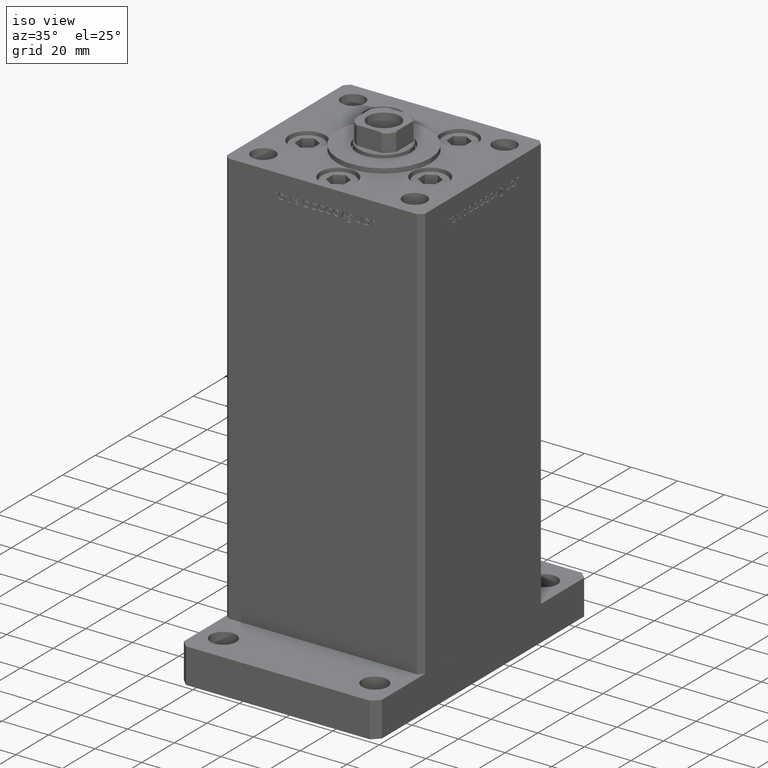
[diagram: clean part render]
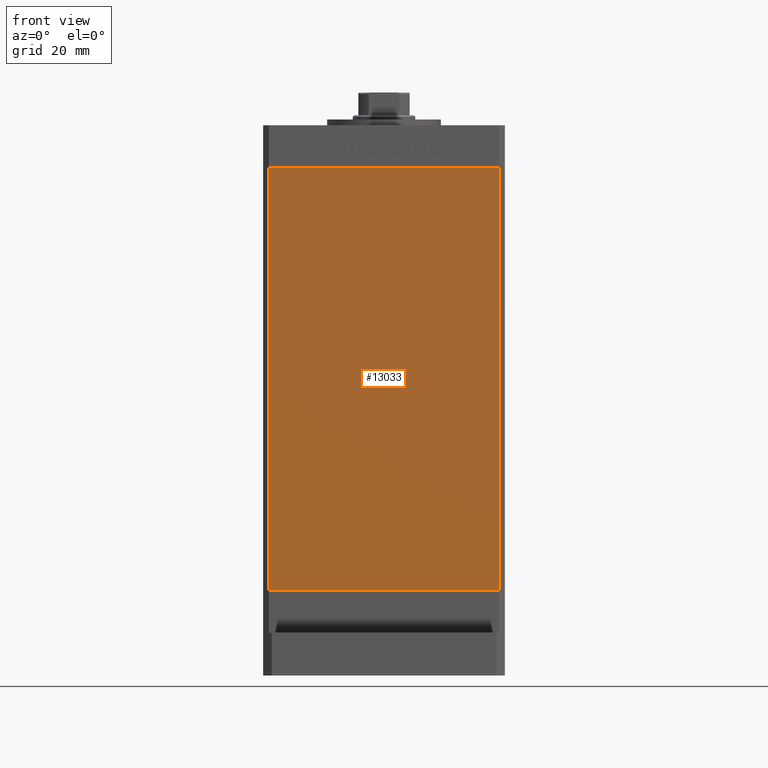
[diagram: tour spotlight — one face highlighted and labeled with its STEP entity id]
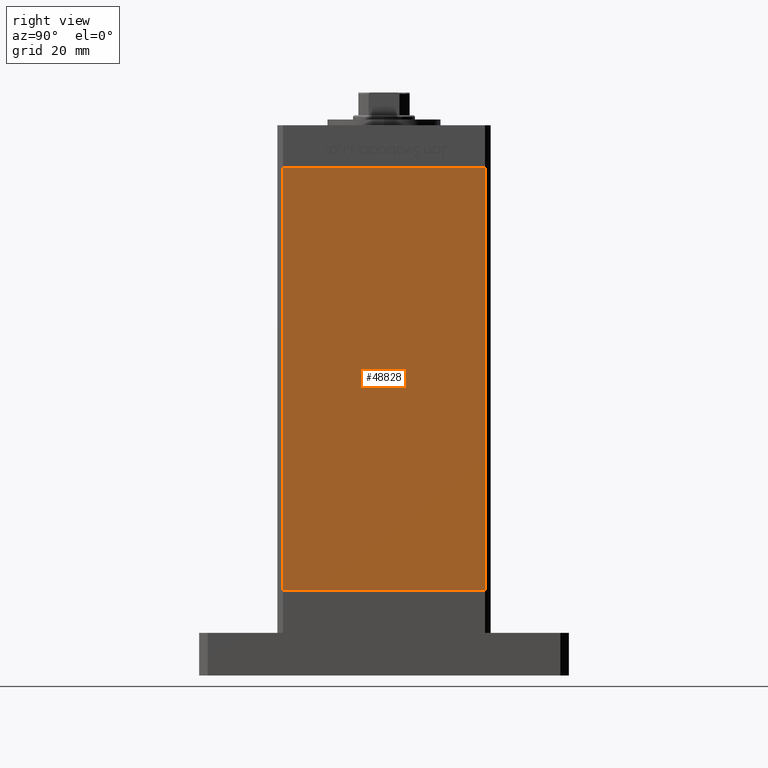
[diagram: tour spotlight — one face highlighted and labeled with its STEP entity id]
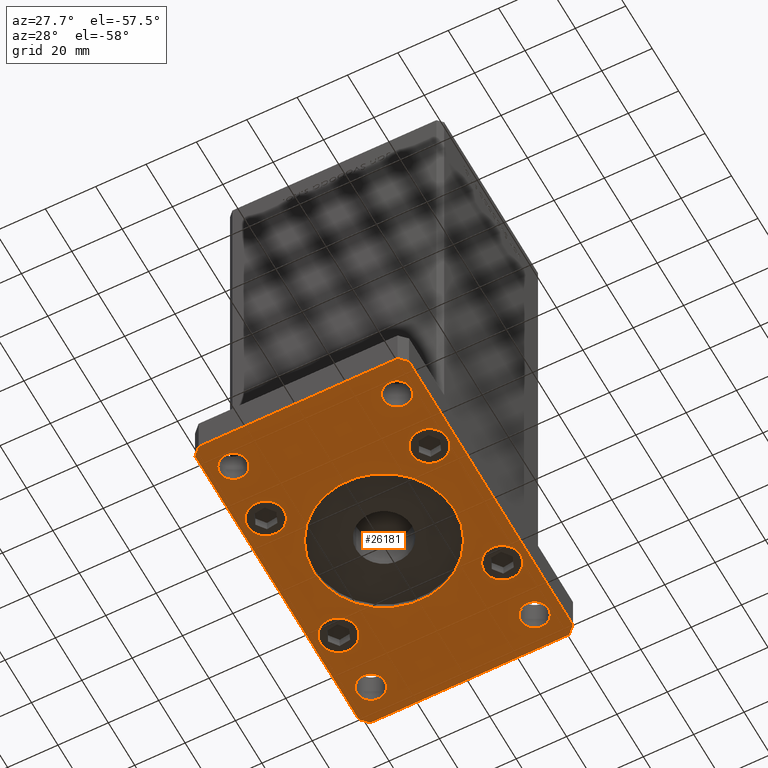
[diagram: tour spotlight — one face highlighted and labeled with its STEP entity id]
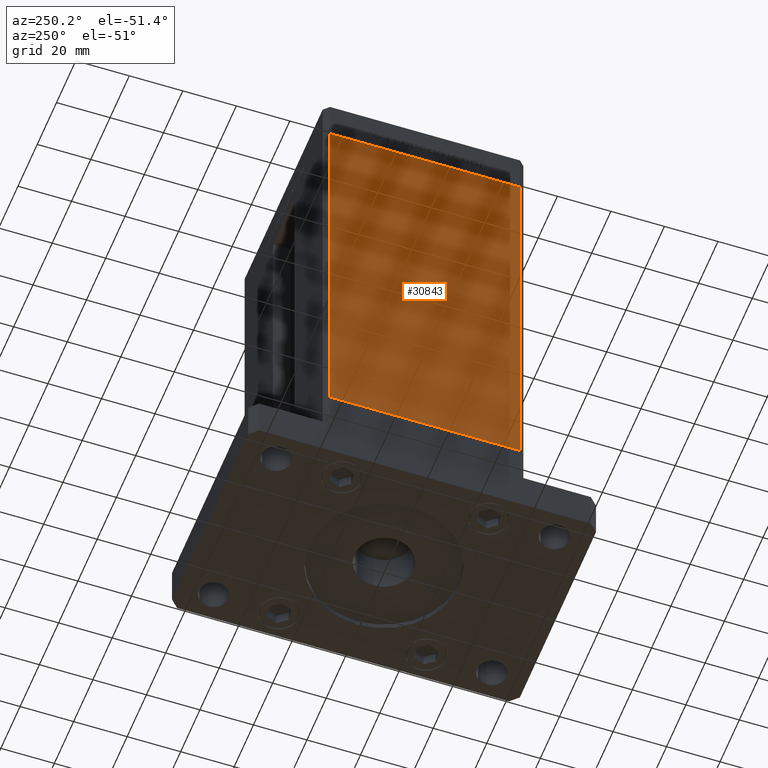
[diagram: tour spotlight — one face highlighted and labeled with its STEP entity id]
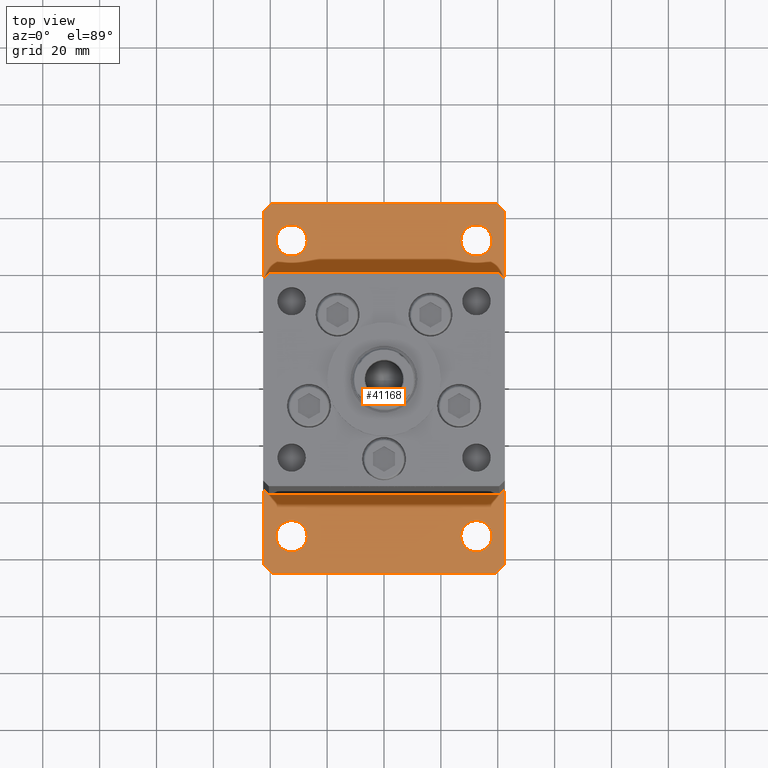
[diagram: tour spotlight — one face highlighted and labeled with its STEP entity id]
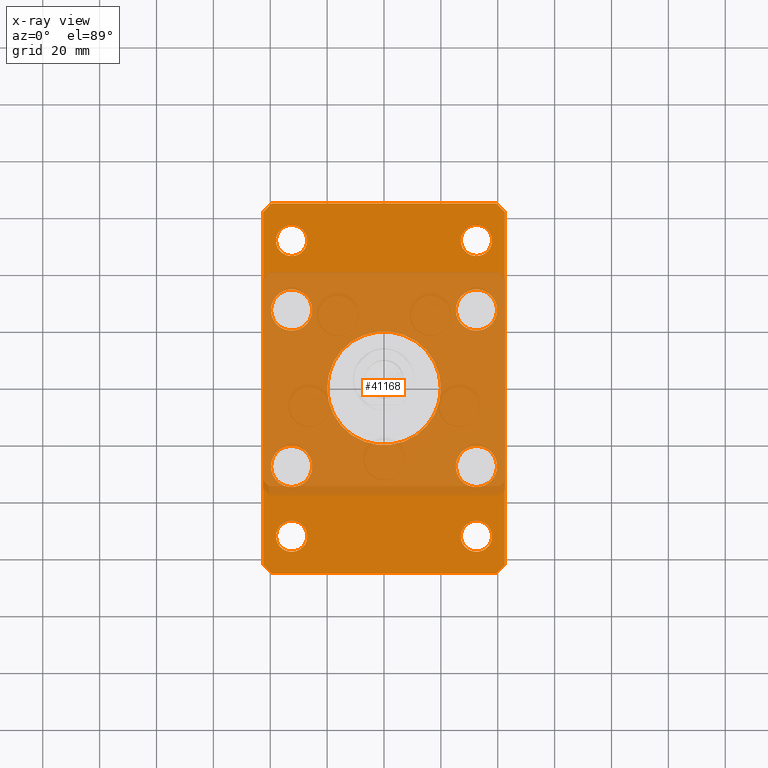
[diagram: x-ray of the same camera — body ghosted, this tour face saturated]
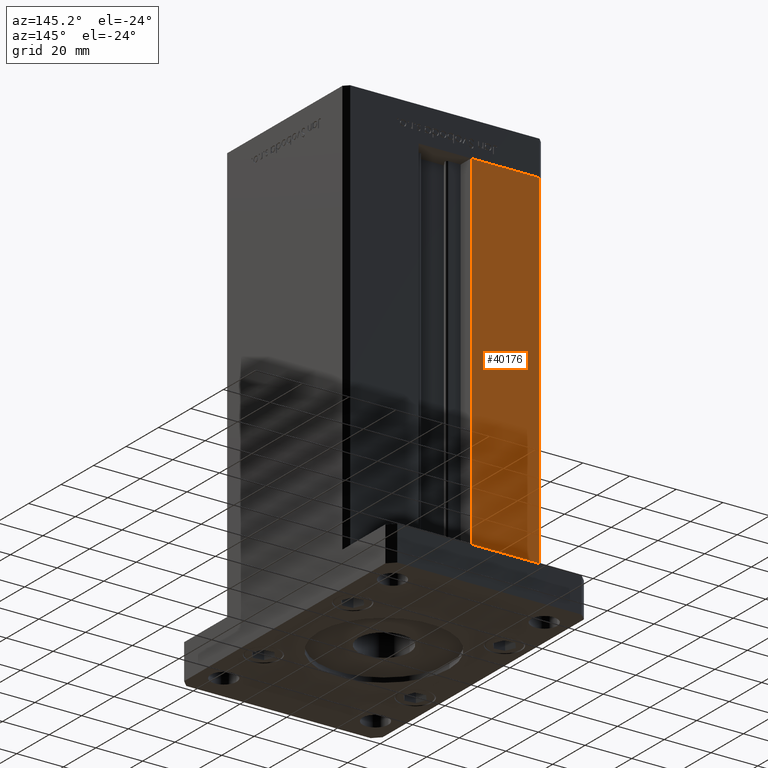
[diagram: tour spotlight — one face highlighted and labeled with its STEP entity id]
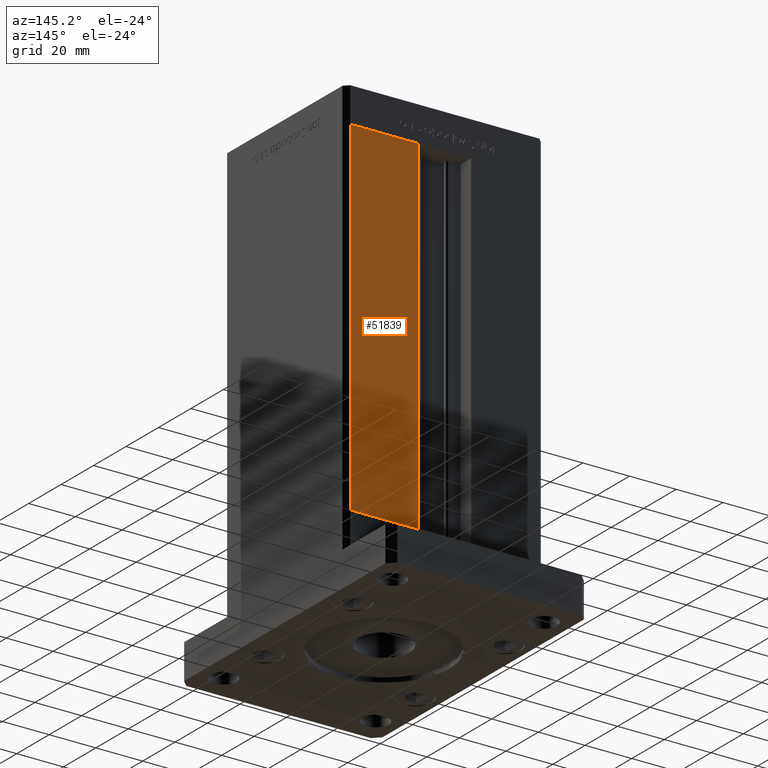
[diagram: tour spotlight — one face highlighted and labeled with its STEP entity id]
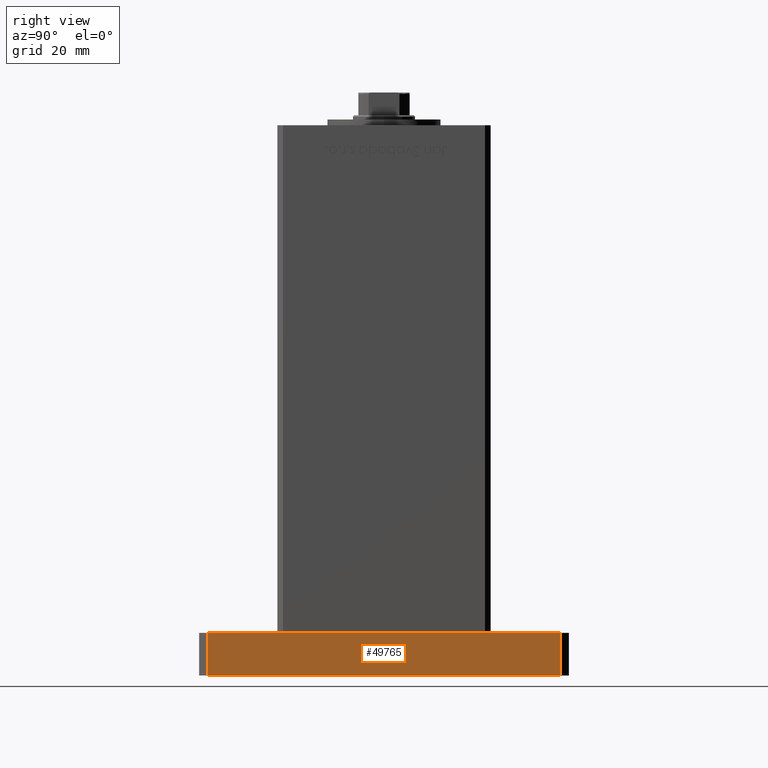
[diagram: tour spotlight — one face highlighted and labeled with its STEP entity id]
A machine part: a face-by-face anatomy tour. The part has 1301 B-rep faces; the first image is the clean iso view, then the 8 largest visible faces are spotlighted one at a time (largest first), each with its STEP entity span.

Face 1 — front view, entity #13033. In plain terms, the highlighted planar face has unit normal (0, 1, 0).
Definition (entity closure, byte-faithful):
#415 = EDGE_CURVE ( 'NONE', #33476, #8561, #40274, .T. ) ;
#1241 = DIRECTION ( 'NONE',  ( 1.000000000000000000, 0.000000000000000000, 0.000000000000000000 ) ) ;
#3332 = DIRECTION ( 'NONE',  ( -0.000000000000000000, -0.000000000000000000, -1.000000000000000000 ) ) ;
#3523 = EDGE_LOOP ( 'NONE', ( #31674, #44580, #5696, #45705 ) ) ;
#5541 = CARTESIAN_POINT ( 'NONE',  ( -40.49999999999998579, -37.50000000000000711, 148.5000000000000000 ) ) ;
#5696 = ORIENTED_EDGE ( 'NONE', *, *, #38965, .F. ) ;
#6839 = FACE_OUTER_BOUND ( 'NONE', #3523, .T. ) ;
#7124 = VECTOR ( 'NONE', #3332, 1000.000000000000000 ) ;
#7469 = CARTESIAN_POINT ( 'NONE',  ( -40.49999999999998579, -37.50000000000000711, 148.5000000000000000 ) ) ;
#8561 = VERTEX_POINT ( 'NONE', #43860 ) ;
#11402 = CARTESIAN_POINT ( 'NONE',  ( 40.49999999999998579, -37.50000000000000711, 148.5000000000000000 ) ) ;
#11962 = CARTESIAN_POINT ( 'NONE',  ( -40.49999999999998579, -37.50000000000000711, 148.5000000000000000 ) ) ;
#13033 = ADVANCED_FACE ( 'NONE', ( #6839 ), #32698, .F. ) ;
#13487 = CARTESIAN_POINT ( 'NONE',  ( 40.49999999999998579, -37.50000000000000711, 0.000000000000000000 ) ) ;
#16013 = DIRECTION ( 'NONE',  ( -0.000000000000000000, -0.000000000000000000, -1.000000000000000000 ) ) ;
#16016 = AXIS2_PLACEMENT_3D ( 'NONE', #11962, #23322, #48084 ) ;
#16938 = EDGE_CURVE ( 'NONE', #8561, #26403, #45204, .T. ) ;
#23322 = DIRECTION ( 'NONE',  ( 0.000000000000000000, 1.000000000000000000, 0.000000000000000000 ) ) ;
#23335 = CARTESIAN_POINT ( 'NONE',  ( -40.49999999999998579, -37.50000000000000711, 148.5000000000000000 ) ) ;
#26403 = VERTEX_POINT ( 'NONE', #13487 ) ;
#30377 = CARTESIAN_POINT ( 'NONE',  ( 40.49999999999998579, -37.50000000000000711, 148.5000000000000000 ) ) ;
#31674 = ORIENTED_EDGE ( 'NONE', *, *, #16938, .T. ) ;
#31741 = CARTESIAN_POINT ( 'NONE',  ( -40.49999999999998579, -37.50000000000000711, 0.000000000000000000 ) ) ;
#32422 = VECTOR ( 'NONE', #16013, 1000.000000000000000 ) ;
#32698 = PLANE ( 'NONE',  #16016 ) ;
#33476 = VERTEX_POINT ( 'NONE', #5541 ) ;
#34178 = VECTOR ( 'NONE', #1241, 1000.000000000000000 ) ;
#34695 = VECTOR ( 'NONE', #37840, 1000.000000000000000 ) ;
#37840 = DIRECTION ( 'NONE',  ( 1.000000000000000000, 0.000000000000000000, 0.000000000000000000 ) ) ;
#38965 = EDGE_CURVE ( 'NONE', #33476, #46979, #41890, .T. ) ;
#40274 = LINE ( 'NONE', #23335, #7124 ) ;
#41890 = LINE ( 'NONE', #7469, #34695 ) ;
#43860 = CARTESIAN_POINT ( 'NONE',  ( -40.49999999999998579, -37.50000000000000711, 0.000000000000000000 ) ) ;
#44580 = ORIENTED_EDGE ( 'NONE', *, *, #50074, .F. ) ;
#45204 = LINE ( 'NONE', #31741, #34178 ) ;
#45705 = ORIENTED_EDGE ( 'NONE', *, *, #415, .T. ) ;
#46979 = VERTEX_POINT ( 'NONE', #30377 ) ;
#48084 = DIRECTION ( 'NONE',  ( 0.000000000000000000, -0.000000000000000000, 1.000000000000000000 ) ) ;
#50074 = EDGE_CURVE ( 'NONE', #46979, #26403, #52627, .T. ) ;
#52627 = LINE ( 'NONE', #11402, #32422 ) ;

Face 2 — right view, entity #48828. In plain terms, the highlighted planar face has unit normal (1, -0, 0).
Definition (entity closure, byte-faithful):
#2653 = CARTESIAN_POINT ( 'NONE',  ( 42.50000000000000711, 35.50000000000001421, 0.000000000000000000 ) ) ;
#6129 = DIRECTION ( 'NONE',  ( 2.931927001650941360E-16, 1.000000000000000000, 0.000000000000000000 ) ) ;
#9663 = CARTESIAN_POINT ( 'NONE',  ( 42.50000000000000711, 35.50000000000001421, 148.5000000000000000 ) ) ;
#10444 = VERTEX_POINT ( 'NONE', #26733 ) ;
#11835 = LINE ( 'NONE', #28282, #32091 ) ;
#13041 = VECTOR ( 'NONE', #40102, 1000.000000000000000 ) ;
#14041 = DIRECTION ( 'NONE',  ( -2.931927001650941360E-16, -1.000000000000000000, 0.000000000000000000 ) ) ;
#14566 = LINE ( 'NONE', #2653, #34595 ) ;
#17230 = CARTESIAN_POINT ( 'NONE',  ( 42.49999999999998579, -35.50000000000000711, 0.000000000000000000 ) ) ;
#21756 = EDGE_CURVE ( 'NONE', #41728, #21915, #49103, .T. ) ;
#21915 = VERTEX_POINT ( 'NONE', #48767 ) ;
#22354 = DIRECTION ( 'NONE',  ( 1.000000000000000000, -2.931927001650941360E-16, 0.000000000000000000 ) ) ;
#23429 = CARTESIAN_POINT ( 'NONE',  ( 42.49999999999998579, -35.50000000000000711, 148.5000000000000000 ) ) ;
#24245 = DIRECTION ( 'NONE',  ( -0.000000000000000000, -0.000000000000000000, -1.000000000000000000 ) ) ;
#25254 = ORIENTED_EDGE ( 'NONE', *, *, #33884, .F. ) ;
#26384 = FACE_OUTER_BOUND ( 'NONE', #38241, .T. ) ;
#26733 = CARTESIAN_POINT ( 'NONE',  ( 42.50000000000000711, 35.50000000000001421, 0.000000000000000000 ) ) ;
#28282 = CARTESIAN_POINT ( 'NONE',  ( 42.50000000000000711, 35.50000000000001421, 148.5000000000000000 ) ) ;
#28991 = AXIS2_PLACEMENT_3D ( 'NONE', #9663, #22354, #6129 ) ;
#29172 = EDGE_CURVE ( 'NONE', #21915, #41228, #32011, .T. ) ;
#30027 = ORIENTED_EDGE ( 'NONE', *, *, #31954, .F. ) ;
#31954 = EDGE_CURVE ( 'NONE', #10444, #41228, #14566, .T. ) ;
#32011 = LINE ( 'NONE', #23429, #13041 ) ;
#32091 = VECTOR ( 'NONE', #24245, 1000.000000000000000 ) ;
#33884 = EDGE_CURVE ( 'NONE', #41728, #10444, #11835, .T. ) ;
#34595 = VECTOR ( 'NONE', #14041, 1000.000000000000000 ) ;
#36155 = ORIENTED_EDGE ( 'NONE', *, *, #21756, .T. ) ;
#37644 = VECTOR ( 'NONE', #48835, 1000.000000000000000 ) ;
#38241 = EDGE_LOOP ( 'NONE', ( #30027, #25254, #36155, #42445 ) ) ;
#40102 = DIRECTION ( 'NONE',  ( -0.000000000000000000, -0.000000000000000000, -1.000000000000000000 ) ) ;
#41228 = VERTEX_POINT ( 'NONE', #17230 ) ;
#41728 = VERTEX_POINT ( 'NONE', #44076 ) ;
#42445 = ORIENTED_EDGE ( 'NONE', *, *, #29172, .T. ) ;
#44076 = CARTESIAN_POINT ( 'NONE',  ( 42.50000000000000711, 35.50000000000001421, 148.5000000000000000 ) ) ;
#45858 = CARTESIAN_POINT ( 'NONE',  ( 42.50000000000000711, 35.50000000000001421, 148.5000000000000000 ) ) ;
#48767 = CARTESIAN_POINT ( 'NONE',  ( 42.49999999999998579, -35.50000000000000711, 148.5000000000000000 ) ) ;
#48828 = ADVANCED_FACE ( 'NONE', ( #26384 ), #51416, .T. ) ;
#48835 = DIRECTION ( 'NONE',  ( -2.931927001650941360E-16, -1.000000000000000000, 0.000000000000000000 ) ) ;
#49103 = LINE ( 'NONE', #45858, #37644 ) ;
#51416 = PLANE ( 'NONE',  #28991 ) ;

Face 3 — auxiliary view, entity #26181. In plain terms, the highlighted planar face has unit normal (0, 0, 1).
Definition (entity closure, byte-faithful):
#152 = EDGE_CURVE ( 'NONE', #51364, #38638, #20161, .T. ) ;
#488 = AXIS2_PLACEMENT_3D ( 'NONE', #21017, #3982, #24500 ) ;
#747 = ORIENTED_EDGE ( 'NONE', *, *, #35736, .F. ) ;
#1225 = CARTESIAN_POINT ( 'NONE',  ( -32.50000000000000711, 27.50000000000000000, 0.000000000000000000 ) ) ;
#1287 = ORIENTED_EDGE ( 'NONE', *, *, #28323, .T. ) ;
#1406 = VERTEX_POINT ( 'NONE', #41120 ) ;
#1581 = CARTESIAN_POINT ( 'NONE',  ( -28.00000000000000000, 0.000000000000000000, 0.000000000000000000 ) ) ;
#1620 = CARTESIAN_POINT ( 'NONE',  ( -39.50000000000003553, 65.00000000000000000, 0.000000000000000000 ) ) ;
#1707 = FACE_BOUND ( 'NONE', #20022, .T. ) ;
#1927 = EDGE_CURVE ( 'NONE', #6493, #12105, #21004, .T. ) ;
#1970 = AXIS2_PLACEMENT_3D ( 'NONE', #8028, #27732, #3976 ) ;
#2210 = VERTEX_POINT ( 'NONE', #17733 ) ;
#2321 = EDGE_CURVE ( 'NONE', #13529, #3883, #8061, .T. ) ;
#2359 = LINE ( 'NONE', #18857, #44889 ) ;
#2563 = CARTESIAN_POINT ( 'NONE',  ( 27.00000000000001421, 51.99999999999999289, 0.000000000000000000 ) ) ;
#2716 = AXIS2_PLACEMENT_3D ( 'NONE', #47910, #15601, #31201 ) ;
#2985 = LINE ( 'NONE', #24307, #19167 ) ;
#3013 = CARTESIAN_POINT ( 'NONE',  ( 39.50000000000002842, 65.00000000000002842, 0.000000000000000000 ) ) ;
#3070 = AXIS2_PLACEMENT_3D ( 'NONE', #25407, #21377, #50158 ) ;
#3568 = CIRCLE ( 'NONE', #44009, 7.249999999999999112 ) ;
#3883 = VERTEX_POINT ( 'NONE', #1581 ) ;
#3976 = DIRECTION ( 'NONE',  ( -1.000000000000000000, 0.000000000000000000, 0.000000000000000000 ) ) ;
#3982 = DIRECTION ( 'NONE',  ( 0.000000000000000000, 0.000000000000000000, 1.000000000000000000 ) ) ;
#4864 = EDGE_CURVE ( 'NONE', #1406, #37958, #8881, .T. ) ;
#4910 = EDGE_LOOP ( 'NONE', ( #747, #10764, #26583, #28665, #33264, #53324, #18244, #38108 ) ) ;
#4999 = CARTESIAN_POINT ( 'NONE',  ( 25.25000000000000000, 27.50000000000000000, 0.000000000000000000 ) ) ;
#5017 = VECTOR ( 'NONE', #6448, 1000.000000000000000 ) ;
#5144 = DIRECTION ( 'NONE',  ( 1.000000000000000000, 0.000000000000000000, 0.000000000000000000 ) ) ;
#5286 = EDGE_CURVE ( 'NONE', #3883, #13529, #30378, .T. ) ;
#5769 = FACE_BOUND ( 'NONE', #51515, .T. ) ;
#5873 = EDGE_LOOP ( 'NONE', ( #7393, #32395 ) ) ;
#6448 = DIRECTION ( 'NONE',  ( 0.7071067811865483499, -0.7071067811865466846, 0.000000000000000000 ) ) ;
#6493 = VERTEX_POINT ( 'NONE', #44088 ) ;
#6583 = VECTOR ( 'NONE', #18119, 1000.000000000000000 ) ;
#7007 = DIRECTION ( 'NONE',  ( 1.000000000000000000, 0.000000000000000000, -0.000000000000000000 ) ) ;
#7296 = DIRECTION ( 'NONE',  ( 0.000000000000000000, 0.000000000000000000, 1.000000000000000000 ) ) ;
#7393 = ORIENTED_EDGE ( 'NONE', *, *, #24046, .T. ) ;
#7611 = ORIENTED_EDGE ( 'NONE', *, *, #47213, .T. ) ;
#7912 = ORIENTED_EDGE ( 'NONE', *, *, #15546, .T. ) ;
#8028 = CARTESIAN_POINT ( 'NONE',  ( 0.000000000000000000, 0.000000000000000000, 0.000000000000000000 ) ) ;
#8061 = CIRCLE ( 'NONE', #42490, 28.00000000000000000 ) ;
#8122 = DIRECTION ( 'NONE',  ( 1.000000000000000000, 0.000000000000000000, 0.000000000000000000 ) ) ;
#8246 = CIRCLE ( 'NONE', #3070, 5.499999999999998224 ) ;
#8536 = DIRECTION ( 'NONE',  ( 0.7071067811865459074, 0.7071067811865491270, 0.000000000000000000 ) ) ;
#8881 = CIRCLE ( 'NONE', #15783, 7.249999999999999112 ) ;
#8956 = CARTESIAN_POINT ( 'NONE',  ( -39.75000000000000000, -27.50000000000000000, 0.000000000000000000 ) ) ;
#9131 = ORIENTED_EDGE ( 'NONE', *, *, #5286, .F. ) ;
#10003 = LINE ( 'NONE', #26447, #49692 ) ;
#10140 = DIRECTION ( 'NONE',  ( 1.000000000000000000, 0.000000000000000000, 0.000000000000000000 ) ) ;
#10294 = EDGE_CURVE ( 'NONE', #11850, #42775, #40019, .T. ) ;
#10436 = EDGE_LOOP ( 'NONE', ( #39757, #7912 ) ) ;
#10499 = CARTESIAN_POINT ( 'NONE',  ( -42.49999999999999289, -62.00000000000001421, 0.000000000000000000 ) ) ;
#10669 = ORIENTED_EDGE ( 'NONE', *, *, #1927, .T. ) ;
#10764 = ORIENTED_EDGE ( 'NONE', *, *, #20046, .F. ) ;
#10804 = CARTESIAN_POINT ( 'NONE',  ( 0.000000000000000000, 0.000000000000000000, 0.000000000000000000 ) ) ;
#10847 = CIRCLE ( 'NONE', #53008, 5.499999999999998224 ) ;
#11072 = PLANE ( 'NONE',  #34445 ) ;
#11850 = VERTEX_POINT ( 'NONE', #45485 ) ;
#12052 = DIRECTION ( 'NONE',  ( 1.000000000000000000, 0.000000000000000000, 0.000000000000000000 ) ) ;
#12105 = VERTEX_POINT ( 'NONE', #22202 ) ;
#12725 = CARTESIAN_POINT ( 'NONE',  ( 32.50000000000000000, 27.50000000000000000, 0.000000000000000000 ) ) ;
#13517 = EDGE_CURVE ( 'NONE', #34900, #35359, #8246, .T. ) ;
#13529 = VERTEX_POINT ( 'NONE', #33460 ) ;
#13678 = DIRECTION ( 'NONE',  ( 0.000000000000000000, 0.000000000000000000, 1.000000000000000000 ) ) ;
#13964 = CARTESIAN_POINT ( 'NONE',  ( 39.75000000000000000, -27.50000000000000000, 0.000000000000000000 ) ) ;
#14932 = EDGE_CURVE ( 'NONE', #41826, #16941, #42859, .T. ) ;
#15082 = CARTESIAN_POINT ( 'NONE',  ( 32.50000000000000000, -27.50000000000000000, 0.000000000000000000 ) ) ;
#15326 = DIRECTION ( 'NONE',  ( 0.000000000000000000, 0.000000000000000000, 1.000000000000000000 ) ) ;
#15546 = EDGE_CURVE ( 'NONE', #37958, #1406, #24702, .T. ) ;
#15601 = DIRECTION ( 'NONE',  ( 0.000000000000000000, 0.000000000000000000, 1.000000000000000000 ) ) ;
#15783 = AXIS2_PLACEMENT_3D ( 'NONE', #24032, #40438, #49069 ) ;
#16123 = CARTESIAN_POINT ( 'NONE',  ( -32.49999999999997868, -52.00000000000000711, 0.000000000000000000 ) ) ;
#16208 = CIRCLE ( 'NONE', #27380, 7.249999999999999112 ) ;
#16346 = CARTESIAN_POINT ( 'NONE',  ( 32.50000000000000000, 51.99999999999999289, 0.000000000000000000 ) ) ;
#16828 = CIRCLE ( 'NONE', #48625, 7.249999999999999112 ) ;
#16941 = VERTEX_POINT ( 'NONE', #46276 ) ;
#17478 = CIRCLE ( 'NONE', #39767, 5.499999999999994671 ) ;
#17487 = DIRECTION ( 'NONE',  ( 0.000000000000000000, 0.000000000000000000, 1.000000000000000000 ) ) ;
#17733 = CARTESIAN_POINT ( 'NONE',  ( 42.50000000000000000, 62.00000000000000711, 0.000000000000000000 ) ) ;
#18119 = DIRECTION ( 'NONE',  ( -0.7071067811865466846, -0.7071067811865483499, 0.000000000000000000 ) ) ;
#18208 = FACE_BOUND ( 'NONE', #51538, .T. ) ;
#18244 = ORIENTED_EDGE ( 'NONE', *, *, #20989, .F. ) ;
#18284 = VECTOR ( 'NONE', #19836, 1000.000000000000000 ) ;
#18499 = VERTEX_POINT ( 'NONE', #8956 ) ;
#18857 = CARTESIAN_POINT ( 'NONE',  ( -39.50000000000000000, -65.00000000000000000, 0.000000000000000000 ) ) ;
#19106 = EDGE_LOOP ( 'NONE', ( #7611, #10669 ) ) ;
#19167 = VECTOR ( 'NONE', #35876, 1000.000000000000000 ) ;
#19193 = DIRECTION ( 'NONE',  ( 0.000000000000000000, 0.000000000000000000, 1.000000000000000000 ) ) ;
#19347 = DIRECTION ( 'NONE',  ( -0.7071067811865417996, 0.7071067811865532349, 0.000000000000000000 ) ) ;
#19522 = VERTEX_POINT ( 'NONE', #23753 ) ;
#19836 = DIRECTION ( 'NONE',  ( -1.000000000000000000, -3.513364001978340512E-16, 0.000000000000000000 ) ) ;
#19909 = ORIENTED_EDGE ( 'NONE', *, *, #43617, .T. ) ;
#20009 = CIRCLE ( 'NONE', #2716, 5.499999999999994671 ) ;
#20022 = EDGE_LOOP ( 'NONE', ( #1287, #37699 ) ) ;
#20046 = EDGE_CURVE ( 'NONE', #29579, #31194, #26700, .T. ) ;
#20103 = DIRECTION ( 'NONE',  ( -1.000000000000000000, 0.000000000000000000, 0.000000000000000000 ) ) ;
#20161 = LINE ( 'NONE', #49771, #44994 ) ;
#20989 = EDGE_CURVE ( 'NONE', #38638, #2210, #10003, .T. ) ;
#21004 = CIRCLE ( 'NONE', #43335, 5.499999999999994671 ) ;
#21017 = CARTESIAN_POINT ( 'NONE',  ( -32.49999999999997868, -52.00000000000000711, 0.000000000000000000 ) ) ;
#21377 = DIRECTION ( 'NONE',  ( 0.000000000000000000, 0.000000000000000000, 1.000000000000000000 ) ) ;
#22202 = CARTESIAN_POINT ( 'NONE',  ( -37.99999999999997868, -52.00000000000000711, 0.000000000000000000 ) ) ;
#22257 = FACE_OUTER_BOUND ( 'NONE', #4910, .T. ) ;
#22311 = CARTESIAN_POINT ( 'NONE',  ( -32.50000000000000000, 52.00000000000000000, 0.000000000000000000 ) ) ;
#22581 = CARTESIAN_POINT ( 'NONE',  ( 32.49999999999997868, -52.00000000000000711, 0.000000000000000000 ) ) ;
#23131 = CARTESIAN_POINT ( 'NONE',  ( 32.50000000000000000, -27.50000000000000000, 0.000000000000000000 ) ) ;
#23155 = CARTESIAN_POINT ( 'NONE',  ( -32.50000000000000000, -27.50000000000000000, 0.000000000000000000 ) ) ;
#23313 = AXIS2_PLACEMENT_3D ( 'NONE', #16346, #35990, #24416 ) ;
#23370 = CARTESIAN_POINT ( 'NONE',  ( 42.50000000000000000, 62.00000000000000711, 0.000000000000000000 ) ) ;
#23487 = FACE_BOUND ( 'NONE', #28322, .T. ) ;
#23545 = DIRECTION ( 'NONE',  ( 1.000000000000000000, 0.000000000000000000, 0.000000000000000000 ) ) ;
#23753 = CARTESIAN_POINT ( 'NONE',  ( 37.99999999999999289, 51.99999999999999289, 0.000000000000000000 ) ) ;
#23945 = DIRECTION ( 'NONE',  ( 0.000000000000000000, 0.000000000000000000, 1.000000000000000000 ) ) ;
#24032 = CARTESIAN_POINT ( 'NONE',  ( -32.50000000000000711, 27.50000000000000000, 0.000000000000000000 ) ) ;
#24046 = EDGE_CURVE ( 'NONE', #18499, #30274, #16208, .T. ) ;
#24262 = CIRCLE ( 'NONE', #38897, 7.249999999999999112 ) ;
#24307 = CARTESIAN_POINT ( 'NONE',  ( -42.50000000000002132, 62.00000000000000711, 0.000000000000000000 ) ) ;
#24416 = DIRECTION ( 'NONE',  ( 1.000000000000000000, 0.000000000000000000, 0.000000000000000000 ) ) ;
#24500 = DIRECTION ( 'NONE',  ( 1.000000000000000000, 0.000000000000000000, 0.000000000000000000 ) ) ;
#24702 = CIRCLE ( 'NONE', #32436, 7.249999999999999112 ) ;
#25407 = CARTESIAN_POINT ( 'NONE',  ( 32.49999999999997868, -52.00000000000000711, 0.000000000000000000 ) ) ;
#26181 = ADVANCED_FACE ( 'NONE', ( #5769, #22257, #38651, #1707, #18208, #35320, #23487, #47992, #40164, #39890 ), #11072, .F. ) ;
#26447 = CARTESIAN_POINT ( 'NONE',  ( 42.50000000000000000, -61.99999999999988631, 0.000000000000000000 ) ) ;
#26583 = ORIENTED_EDGE ( 'NONE', *, *, #31652, .F. ) ;
#26607 = VERTEX_POINT ( 'NONE', #2563 ) ;
#26660 = ORIENTED_EDGE ( 'NONE', *, *, #35987, .T. ) ;
#26700 = LINE ( 'NONE', #10499, #5017 ) ;
#27380 = AXIS2_PLACEMENT_3D ( 'NONE', #36402, #7296, #39907 ) ;
#27581 = DIRECTION ( 'NONE',  ( 0.000000000000000000, 0.000000000000000000, 1.000000000000000000 ) ) ;
#27672 = CARTESIAN_POINT ( 'NONE',  ( 25.25000000000000000, -27.50000000000000000, 0.000000000000000000 ) ) ;
#27732 = DIRECTION ( 'NONE',  ( 0.000000000000000000, 0.000000000000000000, -1.000000000000000000 ) ) ;
#27936 = LINE ( 'NONE', #23370, #38024 ) ;
#28322 = EDGE_LOOP ( 'NONE', ( #51944, #19909 ) ) ;
#28323 = EDGE_CURVE ( 'NONE', #26607, #19522, #45686, .T. ) ;
#28665 = ORIENTED_EDGE ( 'NONE', *, *, #14932, .F. ) ;
#29579 = VERTEX_POINT ( 'NONE', #34543 ) ;
#29753 = VERTEX_POINT ( 'NONE', #50400 ) ;
#29998 = EDGE_CURVE ( 'NONE', #42603, #46983, #3568, .T. ) ;
#30274 = VERTEX_POINT ( 'NONE', #30641 ) ;
#30327 = EDGE_CURVE ( 'NONE', #2210, #35351, #27936, .T. ) ;
#30378 = CIRCLE ( 'NONE', #1970, 28.00000000000000000 ) ;
#30641 = CARTESIAN_POINT ( 'NONE',  ( -25.25000000000000000, -27.50000000000000000, 0.000000000000000000 ) ) ;
#31131 = DIRECTION ( 'NONE',  ( 0.000000000000000000, 0.000000000000000000, -1.000000000000000000 ) ) ;
#31175 = DIRECTION ( 'NONE',  ( 0.000000000000000000, 0.000000000000000000, 1.000000000000000000 ) ) ;
#31194 = VERTEX_POINT ( 'NONE', #32820 ) ;
#31201 = DIRECTION ( 'NONE',  ( 1.000000000000000000, 0.000000000000000000, 0.000000000000000000 ) ) ;
#31652 = EDGE_CURVE ( 'NONE', #16941, #29579, #2985, .T. ) ;
#31866 = CARTESIAN_POINT ( 'NONE',  ( 32.50000000000000000, 27.50000000000000000, 0.000000000000000000 ) ) ;
#32395 = ORIENTED_EDGE ( 'NONE', *, *, #35608, .T. ) ;
#32436 = AXIS2_PLACEMENT_3D ( 'NONE', #1225, #46516, #10140 ) ;
#32820 = CARTESIAN_POINT ( 'NONE',  ( -39.50000000000000000, -65.00000000000000000, 0.000000000000000000 ) ) ;
#33114 = ORIENTED_EDGE ( 'NONE', *, *, #43948, .T. ) ;
#33259 = EDGE_LOOP ( 'NONE', ( #48422, #44794 ) ) ;
#33264 = ORIENTED_EDGE ( 'NONE', *, *, #35197, .F. ) ;
#33321 = ORIENTED_EDGE ( 'NONE', *, *, #2321, .F. ) ;
#33460 = CARTESIAN_POINT ( 'NONE',  ( 28.00000000000000000, 3.429011037612589276E-15, 0.000000000000000000 ) ) ;
#34445 = AXIS2_PLACEMENT_3D ( 'NONE', #10804, #19193, #7007 ) ;
#34543 = CARTESIAN_POINT ( 'NONE',  ( -42.49999999999999289, -62.00000000000001421, 0.000000000000000000 ) ) ;
#34900 = VERTEX_POINT ( 'NONE', #47630 ) ;
#35197 = EDGE_CURVE ( 'NONE', #35351, #41826, #36774, .T. ) ;
#35222 = DIRECTION ( 'NONE',  ( 0.000000000000000000, 0.000000000000000000, 1.000000000000000000 ) ) ;
#35241 = DIRECTION ( 'NONE',  ( 1.000000000000000000, 1.405345600791337191E-15, 0.000000000000000000 ) ) ;
#35320 = FACE_BOUND ( 'NONE', #5873, .T. ) ;
#35351 = VERTEX_POINT ( 'NONE', #3013 ) ;
#35359 = VERTEX_POINT ( 'NONE', #40477 ) ;
#35608 = EDGE_CURVE ( 'NONE', #30274, #18499, #24262, .T. ) ;
#35689 = EDGE_CURVE ( 'NONE', #43800, #29753, #20009, .T. ) ;
#35736 = EDGE_CURVE ( 'NONE', #31194, #51364, #2359, .T. ) ;
#35876 = DIRECTION ( 'NONE',  ( 2.238352872228137677E-16, -1.000000000000000000, 0.000000000000000000 ) ) ;
#35987 = EDGE_CURVE ( 'NONE', #29753, #43800, #17478, .T. ) ;
#35990 = DIRECTION ( 'NONE',  ( 0.000000000000000000, 0.000000000000000000, 1.000000000000000000 ) ) ;
#36332 = DIRECTION ( 'NONE',  ( 0.000000000000000000, 0.000000000000000000, 1.000000000000000000 ) ) ;
#36402 = CARTESIAN_POINT ( 'NONE',  ( -32.50000000000000000, -27.50000000000000000, 0.000000000000000000 ) ) ;
#36543 = AXIS2_PLACEMENT_3D ( 'NONE', #23131, #31175, #51925 ) ;
#36774 = LINE ( 'NONE', #53211, #18284 ) ;
#37699 = ORIENTED_EDGE ( 'NONE', *, *, #37766, .T. ) ;
#37766 = EDGE_CURVE ( 'NONE', #19522, #26607, #47587, .T. ) ;
#37907 = DIRECTION ( 'NONE',  ( 1.000000000000000000, 0.000000000000000000, 0.000000000000000000 ) ) ;
#37958 = VERTEX_POINT ( 'NONE', #42724 ) ;
#38024 = VECTOR ( 'NONE', #19347, 1000.000000000000000 ) ;
#38108 = ORIENTED_EDGE ( 'NONE', *, *, #152, .F. ) ;
#38638 = VERTEX_POINT ( 'NONE', #43657 ) ;
#38651 = FACE_BOUND ( 'NONE', #19106, .T. ) ;
#38897 = AXIS2_PLACEMENT_3D ( 'NONE', #23155, #23945, #43327 ) ;
#39136 = AXIS2_PLACEMENT_3D ( 'NONE', #31866, #27581, #23545 ) ;
#39757 = ORIENTED_EDGE ( 'NONE', *, *, #4864, .T. ) ;
#39767 = AXIS2_PLACEMENT_3D ( 'NONE', #22311, #13678, #37907 ) ;
#39890 = FACE_BOUND ( 'NONE', #33259, .T. ) ;
#39907 = DIRECTION ( 'NONE',  ( 1.000000000000000000, 0.000000000000000000, 0.000000000000000000 ) ) ;
#40019 = CIRCLE ( 'NONE', #39136, 7.249999999999999112 ) ;
#40164 = FACE_BOUND ( 'NONE', #10436, .T. ) ;
#40374 = DIRECTION ( 'NONE',  ( 1.000000000000000000, 0.000000000000000000, 0.000000000000000000 ) ) ;
#40438 = DIRECTION ( 'NONE',  ( 0.000000000000000000, 0.000000000000000000, 1.000000000000000000 ) ) ;
#40477 = CARTESIAN_POINT ( 'NONE',  ( 37.99999999999997868, -52.00000000000000711, 0.000000000000000000 ) ) ;
#41111 = CARTESIAN_POINT ( 'NONE',  ( -39.50000000000003553, 65.00000000000000000, 0.000000000000000000 ) ) ;
#41120 = CARTESIAN_POINT ( 'NONE',  ( -39.75000000000000711, 27.50000000000000000, 0.000000000000000000 ) ) ;
#41826 = VERTEX_POINT ( 'NONE', #41111 ) ;
#42072 = CARTESIAN_POINT ( 'NONE',  ( 32.50000000000000000, 51.99999999999999289, 0.000000000000000000 ) ) ;
#42490 = AXIS2_PLACEMENT_3D ( 'NONE', #48369, #31131, #20103 ) ;
#42603 = VERTEX_POINT ( 'NONE', #27672 ) ;
#42724 = CARTESIAN_POINT ( 'NONE',  ( -25.25000000000000711, 27.50000000000000000, 0.000000000000000000 ) ) ;
#42775 = VERTEX_POINT ( 'NONE', #4999 ) ;
#42859 = LINE ( 'NONE', #1620, #6583 ) ;
#43327 = DIRECTION ( 'NONE',  ( 1.000000000000000000, 0.000000000000000000, 0.000000000000000000 ) ) ;
#43335 = AXIS2_PLACEMENT_3D ( 'NONE', #16123, #15326, #12052 ) ;
#43617 = EDGE_CURVE ( 'NONE', #46983, #42603, #52897, .T. ) ;
#43657 = CARTESIAN_POINT ( 'NONE',  ( 42.50000000000000000, -61.99999999999988631, 0.000000000000000000 ) ) ;
#43800 = VERTEX_POINT ( 'NONE', #46436 ) ;
#43948 = EDGE_CURVE ( 'NONE', #42775, #11850, #16828, .T. ) ;
#44009 = AXIS2_PLACEMENT_3D ( 'NONE', #15082, #36332, #40374 ) ;
#44088 = CARTESIAN_POINT ( 'NONE',  ( -26.99999999999998579, -52.00000000000000711, 0.000000000000000000 ) ) ;
#44101 = ORIENTED_EDGE ( 'NONE', *, *, #10294, .T. ) ;
#44794 = ORIENTED_EDGE ( 'NONE', *, *, #50745, .T. ) ;
#44889 = VECTOR ( 'NONE', #35241, 1000.000000000000000 ) ;
#44994 = VECTOR ( 'NONE', #8536, 1000.000000000000114 ) ;
#45040 = DIRECTION ( 'NONE',  ( 0.000000000000000000, 0.000000000000000000, 1.000000000000000000 ) ) ;
#45485 = CARTESIAN_POINT ( 'NONE',  ( 39.75000000000000000, 27.50000000000000000, 0.000000000000000000 ) ) ;
#45686 = CIRCLE ( 'NONE', #23313, 5.499999999999991118 ) ;
#46139 = CIRCLE ( 'NONE', #488, 5.499999999999994671 ) ;
#46276 = CARTESIAN_POINT ( 'NONE',  ( -42.50000000000002132, 62.00000000000000711, 0.000000000000000000 ) ) ;
#46381 = DIRECTION ( 'NONE',  ( 0.000000000000000000, 1.000000000000000000, 0.000000000000000000 ) ) ;
#46436 = CARTESIAN_POINT ( 'NONE',  ( -27.00000000000000711, 52.00000000000000000, 0.000000000000000000 ) ) ;
#46516 = DIRECTION ( 'NONE',  ( 0.000000000000000000, 0.000000000000000000, 1.000000000000000000 ) ) ;
#46805 = DIRECTION ( 'NONE',  ( 1.000000000000000000, 0.000000000000000000, 0.000000000000000000 ) ) ;
#46879 = CARTESIAN_POINT ( 'NONE',  ( 39.50000000000001421, -64.99999999999988631, 0.000000000000000000 ) ) ;
#46983 = VERTEX_POINT ( 'NONE', #13964 ) ;
#47213 = EDGE_CURVE ( 'NONE', #12105, #6493, #46139, .T. ) ;
#47587 = CIRCLE ( 'NONE', #51019, 5.499999999999991118 ) ;
#47630 = CARTESIAN_POINT ( 'NONE',  ( 26.99999999999998579, -52.00000000000000711, 0.000000000000000000 ) ) ;
#47910 = CARTESIAN_POINT ( 'NONE',  ( -32.50000000000000000, 52.00000000000000000, 0.000000000000000000 ) ) ;
#47992 = FACE_BOUND ( 'NONE', #48264, .T. ) ;
#48264 = EDGE_LOOP ( 'NONE', ( #33114, #44101 ) ) ;
#48369 = CARTESIAN_POINT ( 'NONE',  ( 0.000000000000000000, 0.000000000000000000, 0.000000000000000000 ) ) ;
#48422 = ORIENTED_EDGE ( 'NONE', *, *, #13517, .T. ) ;
#48625 = AXIS2_PLACEMENT_3D ( 'NONE', #12725, #45040, #8122 ) ;
#49069 = DIRECTION ( 'NONE',  ( 1.000000000000000000, 0.000000000000000000, 0.000000000000000000 ) ) ;
#49692 = VECTOR ( 'NONE', #46381, 1000.000000000000000 ) ;
#49771 = CARTESIAN_POINT ( 'NONE',  ( 39.50000000000001421, -64.99999999999988631, 0.000000000000000000 ) ) ;
#50158 = DIRECTION ( 'NONE',  ( 1.000000000000000000, 0.000000000000000000, 0.000000000000000000 ) ) ;
#50400 = CARTESIAN_POINT ( 'NONE',  ( -38.00000000000000000, 52.00000000000000000, 0.000000000000000000 ) ) ;
#50745 = EDGE_CURVE ( 'NONE', #35359, #34900, #10847, .T. ) ;
#51019 = AXIS2_PLACEMENT_3D ( 'NONE', #42072, #35222, #5144 ) ;
#51364 = VERTEX_POINT ( 'NONE', #46879 ) ;
#51515 = EDGE_LOOP ( 'NONE', ( #9131, #33321 ) ) ;
#51538 = EDGE_LOOP ( 'NONE', ( #26660, #51927 ) ) ;
#51925 = DIRECTION ( 'NONE',  ( 1.000000000000000000, 0.000000000000000000, 0.000000000000000000 ) ) ;
#51927 = ORIENTED_EDGE ( 'NONE', *, *, #35689, .T. ) ;
#51944 = ORIENTED_EDGE ( 'NONE', *, *, #29998, .T. ) ;
#52897 = CIRCLE ( 'NONE', #36543, 7.249999999999999112 ) ;
#53008 = AXIS2_PLACEMENT_3D ( 'NONE', #22581, #17487, #46805 ) ;
#53211 = CARTESIAN_POINT ( 'NONE',  ( 39.50000000000002842, 65.00000000000002842, 0.000000000000000000 ) ) ;
#53324 = ORIENTED_EDGE ( 'NONE', *, *, #30327, .F. ) ;

Face 4 — auxiliary view, entity #30843. In plain terms, the highlighted planar face has unit normal (1, 0, 0).
Definition (entity closure, byte-faithful):
#701 = EDGE_LOOP ( 'NONE', ( #50866, #51684, #34403, #39520 ) ) ;
#996 = AXIS2_PLACEMENT_3D ( 'NONE', #37745, #17310, #13235 ) ;
#1255 = CARTESIAN_POINT ( 'NONE',  ( -42.50000000000000711, 35.50000000000001421, 0.000000000000000000 ) ) ;
#2317 = CARTESIAN_POINT ( 'NONE',  ( -42.50000000000000711, 35.50000000000001421, 148.5000000000000000 ) ) ;
#2909 = LINE ( 'NONE', #18887, #19516 ) ;
#4591 = CARTESIAN_POINT ( 'NONE',  ( -42.49999999999998579, -35.50000000000000711, 0.000000000000000000 ) ) ;
#7255 = CARTESIAN_POINT ( 'NONE',  ( -42.50000000000000711, 35.50000000000001421, 148.5000000000000000 ) ) ;
#7726 = DIRECTION ( 'NONE',  ( 2.931927001650941360E-16, -1.000000000000000000, 0.000000000000000000 ) ) ;
#11023 = DIRECTION ( 'NONE',  ( -0.000000000000000000, -0.000000000000000000, -1.000000000000000000 ) ) ;
#11246 = LINE ( 'NONE', #27698, #18723 ) ;
#13235 = DIRECTION ( 'NONE',  ( -2.931927001650941360E-16, 1.000000000000000000, 0.000000000000000000 ) ) ;
#15341 = EDGE_CURVE ( 'NONE', #30226, #24118, #11246, .T. ) ;
#17310 = DIRECTION ( 'NONE',  ( 1.000000000000000000, 2.931927001650941360E-16, -0.000000000000000000 ) ) ;
#18549 = LINE ( 'NONE', #2317, #23383 ) ;
#18723 = VECTOR ( 'NONE', #7726, 1000.000000000000000 ) ;
#18887 = CARTESIAN_POINT ( 'NONE',  ( -42.49999999999998579, -35.50000000000000711, 148.5000000000000000 ) ) ;
#19516 = VECTOR ( 'NONE', #11023, 1000.000000000000000 ) ;
#20450 = VECTOR ( 'NONE', #51417, 1000.000000000000000 ) ;
#21348 = EDGE_CURVE ( 'NONE', #34563, #26512, #35229, .T. ) ;
#21358 = PLANE ( 'NONE',  #996 ) ;
#23383 = VECTOR ( 'NONE', #26622, 1000.000000000000000 ) ;
#24118 = VERTEX_POINT ( 'NONE', #4591 ) ;
#26512 = VERTEX_POINT ( 'NONE', #50844 ) ;
#26622 = DIRECTION ( 'NONE',  ( -0.000000000000000000, -0.000000000000000000, -1.000000000000000000 ) ) ;
#27698 = CARTESIAN_POINT ( 'NONE',  ( -42.50000000000000711, 35.50000000000001421, 0.000000000000000000 ) ) ;
#30224 = EDGE_CURVE ( 'NONE', #34563, #30226, #18549, .T. ) ;
#30226 = VERTEX_POINT ( 'NONE', #1255 ) ;
#30843 = ADVANCED_FACE ( 'NONE', ( #41516 ), #21358, .F. ) ;
#34403 = ORIENTED_EDGE ( 'NONE', *, *, #21348, .F. ) ;
#34563 = VERTEX_POINT ( 'NONE', #7255 ) ;
#35229 = LINE ( 'NONE', #47899, #20450 ) ;
#37745 = CARTESIAN_POINT ( 'NONE',  ( -42.50000000000000711, 35.50000000000001421, 148.5000000000000000 ) ) ;
#39520 = ORIENTED_EDGE ( 'NONE', *, *, #30224, .T. ) ;
#41516 = FACE_OUTER_BOUND ( 'NONE', #701, .T. ) ;
#47114 = EDGE_CURVE ( 'NONE', #26512, #24118, #2909, .T. ) ;
#47899 = CARTESIAN_POINT ( 'NONE',  ( -42.50000000000000711, 35.50000000000001421, 148.5000000000000000 ) ) ;
#50844 = CARTESIAN_POINT ( 'NONE',  ( -42.49999999999998579, -35.50000000000000711, 148.5000000000000000 ) ) ;
#50866 = ORIENTED_EDGE ( 'NONE', *, *, #15341, .T. ) ;
#51417 = DIRECTION ( 'NONE',  ( 2.931927001650941360E-16, -1.000000000000000000, 0.000000000000000000 ) ) ;
#51684 = ORIENTED_EDGE ( 'NONE', *, *, #47114, .F. ) ;

Face 5 — top view, entity #41168. An x-ray twin of the same camera follows (body ghosted, this face saturated) — the face is partly hidden behind the body. In plain terms, the highlighted planar face has unit normal (0, 0, 1).
Definition (entity closure, byte-faithful):
#123 = DIRECTION ( 'NONE',  ( 0.000000000000000000, 0.000000000000000000, 1.000000000000000000 ) ) ;
#220 = VECTOR ( 'NONE', #40590, 1000.000000000000000 ) ;
#279 = DIRECTION ( 'NONE',  ( 0.000000000000000000, 0.000000000000000000, 1.000000000000000000 ) ) ;
#589 = CIRCLE ( 'NONE', #35864, 7.249999999999999112 ) ;
#642 = EDGE_CURVE ( 'NONE', #52830, #9656, #9278, .T. ) ;
#739 = DIRECTION ( 'NONE',  ( 1.000000000000000000, 0.000000000000000000, 0.000000000000000000 ) ) ;
#849 = EDGE_LOOP ( 'NONE', ( #38475, #25814 ) ) ;
#1048 = DIRECTION ( 'NONE',  ( 0.000000000000000000, 0.000000000000000000, 1.000000000000000000 ) ) ;
#1052 = DIRECTION ( 'NONE',  ( 0.000000000000000000, 0.000000000000000000, 1.000000000000000000 ) ) ;
#1166 = CIRCLE ( 'NONE', #40756, 5.499999999999994671 ) ;
#1199 = AXIS2_PLACEMENT_3D ( 'NONE', #30685, #42539, #14534 ) ;
#1210 = EDGE_LOOP ( 'NONE', ( #19662, #50718 ) ) ;
#1315 = CARTESIAN_POINT ( 'NONE',  ( -32.50000000000000000, -27.50000000000000000, 15.00000000000000000 ) ) ;
#1770 = CIRCLE ( 'NONE', #13854, 5.499999999999994671 ) ;
#1974 = VECTOR ( 'NONE', #14127, 1000.000000000000000 ) ;
#2038 = EDGE_CURVE ( 'NONE', #31857, #7540, #45073, .T. ) ;
#2331 = ORIENTED_EDGE ( 'NONE', *, *, #16205, .F. ) ;
#2376 = VECTOR ( 'NONE', #22653, 1000.000000000000000 ) ;
#2932 = DIRECTION ( 'NONE',  ( 1.000000000000000000, 0.000000000000000000, 0.000000000000000000 ) ) ;
#2993 = DIRECTION ( 'NONE',  ( 1.000000000000000000, 0.000000000000000000, 0.000000000000000000 ) ) ;
#3223 = AXIS2_PLACEMENT_3D ( 'NONE', #16461, #40410, #20513 ) ;
#3224 = CARTESIAN_POINT ( 'NONE',  ( -39.75000000000000711, 27.50000000000000000, 15.00000000000000000 ) ) ;
#3360 = DIRECTION ( 'NONE',  ( 1.000000000000000000, 0.000000000000000000, 0.000000000000000000 ) ) ;
#3479 = VERTEX_POINT ( 'NONE', #38841 ) ;
#3603 = AXIS2_PLACEMENT_3D ( 'NONE', #4331, #279, #29409 ) ;
#3787 = EDGE_CURVE ( 'NONE', #46561, #16880, #51985, .T. ) ;
#4224 = CARTESIAN_POINT ( 'NONE',  ( -32.50000000000000711, 27.50000000000000000, 15.00000000000000000 ) ) ;
#4260 = DIRECTION ( 'NONE',  ( 1.000000000000000000, 0.000000000000000000, 0.000000000000000000 ) ) ;
#4331 = CARTESIAN_POINT ( 'NONE',  ( 32.50000000000000000, -27.50000000000000000, 15.00000000000000000 ) ) ;
#4518 = CARTESIAN_POINT ( 'NONE',  ( 0.000000000000000000, 0.000000000000000000, 15.00000000000000000 ) ) ;
#4788 = DIRECTION ( 'NONE',  ( 0.000000000000000000, 0.000000000000000000, 1.000000000000000000 ) ) ;
#4868 = VECTOR ( 'NONE', #52542, 1000.000000000000000 ) ;
#5083 = LINE ( 'NONE', #38493, #22660 ) ;
#5665 = AXIS2_PLACEMENT_3D ( 'NONE', #29340, #52779, #4260 ) ;
#5877 = CARTESIAN_POINT ( 'NONE',  ( -27.00000000000000711, 52.00000000000000000, 15.00000000000000000 ) ) ;
#5973 = LINE ( 'NONE', #18159, #53177 ) ;
#6216 = EDGE_CURVE ( 'NONE', #44778, #48581, #1166, .T. ) ;
#6334 = AXIS2_PLACEMENT_3D ( 'NONE', #4518, #4788, #45750 ) ;
#6622 = CIRCLE ( 'NONE', #34172, 7.249999999999999112 ) ;
#6623 = EDGE_LOOP ( 'NONE', ( #12672, #29094 ) ) ;
#7030 = EDGE_LOOP ( 'NONE', ( #18014, #19710, #49894, #42118, #33236, #25597, #11169, #8335 ) ) ;
#7362 = DIRECTION ( 'NONE',  ( 1.000000000000000000, 0.000000000000000000, 0.000000000000000000 ) ) ;
#7540 = VERTEX_POINT ( 'NONE', #5877 ) ;
#7548 = VERTEX_POINT ( 'NONE', #47634 ) ;
#7908 = VERTEX_POINT ( 'NONE', #48633 ) ;
#8196 = CIRCLE ( 'NONE', #38327, 20.00000000000000000 ) ;
#8335 = ORIENTED_EDGE ( 'NONE', *, *, #34307, .T. ) ;
#8375 = EDGE_CURVE ( 'NONE', #7540, #31857, #40783, .T. ) ;
#8498 = EDGE_LOOP ( 'NONE', ( #30934, #23519 ) ) ;
#8544 = CARTESIAN_POINT ( 'NONE',  ( -32.50000000000000000, 52.00000000000000000, 15.00000000000000000 ) ) ;
#9072 = AXIS2_PLACEMENT_3D ( 'NONE', #49324, #1052, #33428 ) ;
#9278 = LINE ( 'NONE', #10079, #1974 ) ;
#9656 = VERTEX_POINT ( 'NONE', #48975 ) ;
#10079 = CARTESIAN_POINT ( 'NONE',  ( 39.50000000000002842, 65.00000000000002842, 15.00000000000000000 ) ) ;
#10319 = DIRECTION ( 'NONE',  ( 0.000000000000000000, 0.000000000000000000, 1.000000000000000000 ) ) ;
#10527 = VERTEX_POINT ( 'NONE', #52817 ) ;
#10547 = EDGE_CURVE ( 'NONE', #37036, #30975, #19984, .T. ) ;
#10779 = CARTESIAN_POINT ( 'NONE',  ( 32.50000000000000000, 27.50000000000000000, 15.00000000000000000 ) ) ;
#11169 = ORIENTED_EDGE ( 'NONE', *, *, #23922, .T. ) ;
#11348 = EDGE_CURVE ( 'NONE', #52606, #10527, #48643, .T. ) ;
#11646 = CARTESIAN_POINT ( 'NONE',  ( -39.75000000000000000, -27.50000000000000000, 15.00000000000000000 ) ) ;
#11765 = EDGE_LOOP ( 'NONE', ( #2331, #20606 ) ) ;
#12169 = VERTEX_POINT ( 'NONE', #16026 ) ;
#12353 = PLANE ( 'NONE',  #6334 ) ;
#12595 = DIRECTION ( 'NONE',  ( 0.000000000000000000, 0.000000000000000000, 1.000000000000000000 ) ) ;
#12627 = FACE_BOUND ( 'NONE', #15509, .T. ) ;
#12672 = ORIENTED_EDGE ( 'NONE', *, *, #31724, .F. ) ;
#12774 = EDGE_CURVE ( 'NONE', #44097, #17936, #33227, .T. ) ;
#12829 = CARTESIAN_POINT ( 'NONE',  ( 39.75000000000000000, -27.50000000000000000, 15.00000000000000000 ) ) ;
#12890 = FACE_BOUND ( 'NONE', #11765, .T. ) ;
#13106 = VERTEX_POINT ( 'NONE', #24373 ) ;
#13841 = DIRECTION ( 'NONE',  ( 1.000000000000000000, 0.000000000000000000, 0.000000000000000000 ) ) ;
#13854 = AXIS2_PLACEMENT_3D ( 'NONE', #24690, #123, #3360 ) ;
#14127 = DIRECTION ( 'NONE',  ( -1.000000000000000000, -3.513364001978340512E-16, 0.000000000000000000 ) ) ;
#14369 = VERTEX_POINT ( 'NONE', #19037 ) ;
#14428 = AXIS2_PLACEMENT_3D ( 'NONE', #45915, #45110, #24664 ) ;
#14534 = DIRECTION ( 'NONE',  ( 1.000000000000000000, 0.000000000000000000, 0.000000000000000000 ) ) ;
#14611 = EDGE_CURVE ( 'NONE', #3479, #52830, #43918, .T. ) ;
#14860 = CARTESIAN_POINT ( 'NONE',  ( 39.50000000000001421, -64.99999999999988631, 15.00000000000000000 ) ) ;
#15098 = VERTEX_POINT ( 'NONE', #41207 ) ;
#15509 = EDGE_LOOP ( 'NONE', ( #30531, #26578 ) ) ;
#15982 = LINE ( 'NONE', #32380, #38132 ) ;
#16026 = CARTESIAN_POINT ( 'NONE',  ( -25.25000000000000711, 27.50000000000000000, 15.00000000000000000 ) ) ;
#16205 = EDGE_CURVE ( 'NONE', #27948, #12169, #589, .T. ) ;
#16207 = CARTESIAN_POINT ( 'NONE',  ( -39.50000000000000000, -65.00000000000000000, 15.00000000000000000 ) ) ;
#16461 = CARTESIAN_POINT ( 'NONE',  ( 32.50000000000000000, 51.99999999999999289, 15.00000000000000000 ) ) ;
#16747 = CIRCLE ( 'NONE', #33943, 7.249999999999999112 ) ;
#16880 = VERTEX_POINT ( 'NONE', #44666 ) ;
#17207 = CARTESIAN_POINT ( 'NONE',  ( -20.00000000000000000, 0.000000000000000000, 15.00000000000000000 ) ) ;
#17557 = EDGE_CURVE ( 'NONE', #12169, #27948, #30763, .T. ) ;
#17936 = VERTEX_POINT ( 'NONE', #48697 ) ;
#18014 = ORIENTED_EDGE ( 'NONE', *, *, #37786, .T. ) ;
#18114 = CARTESIAN_POINT ( 'NONE',  ( -37.99999999999997868, -52.00000000000000711, 15.00000000000000000 ) ) ;
#18159 = CARTESIAN_POINT ( 'NONE',  ( -42.50000000000002132, 62.00000000000000711, 15.00000000000000000 ) ) ;
#18360 = CIRCLE ( 'NONE', #26951, 7.249999999999999112 ) ;
#19037 = CARTESIAN_POINT ( 'NONE',  ( -42.49999999999999289, -62.00000000000001421, 15.00000000000000000 ) ) ;
#19192 = DIRECTION ( 'NONE',  ( 1.000000000000000000, 0.000000000000000000, 0.000000000000000000 ) ) ;
#19495 = EDGE_CURVE ( 'NONE', #7908, #7548, #42038, .T. ) ;
#19662 = ORIENTED_EDGE ( 'NONE', *, *, #31115, .F. ) ;
#19710 = ORIENTED_EDGE ( 'NONE', *, *, #10547, .T. ) ;
#19984 = LINE ( 'NONE', #14860, #46922 ) ;
#20244 = ORIENTED_EDGE ( 'NONE', *, *, #12774, .F. ) ;
#20513 = DIRECTION ( 'NONE',  ( 1.000000000000000000, 0.000000000000000000, 0.000000000000000000 ) ) ;
#20590 = EDGE_CURVE ( 'NONE', #41805, #13106, #6622, .T. ) ;
#20606 = ORIENTED_EDGE ( 'NONE', *, *, #17557, .F. ) ;
#20957 = CARTESIAN_POINT ( 'NONE',  ( 39.50000000000001421, -64.99999999999988631, 15.00000000000000000 ) ) ;
#21279 = FACE_BOUND ( 'NONE', #8498, .T. ) ;
#21571 = DIRECTION ( 'NONE',  ( -0.7071067811865466846, -0.7071067811865483499, 0.000000000000000000 ) ) ;
#21808 = CARTESIAN_POINT ( 'NONE',  ( -32.49999999999997868, -52.00000000000000711, 15.00000000000000000 ) ) ;
#21944 = EDGE_CURVE ( 'NONE', #7548, #7908, #52290, .T. ) ;
#22114 = VERTEX_POINT ( 'NONE', #26135 ) ;
#22139 = CARTESIAN_POINT ( 'NONE',  ( 42.50000000000000000, -61.99999999999988631, 15.00000000000000000 ) ) ;
#22401 = CARTESIAN_POINT ( 'NONE',  ( -38.00000000000000000, 52.00000000000000000, 15.00000000000000000 ) ) ;
#22653 = DIRECTION ( 'NONE',  ( 0.000000000000000000, 1.000000000000000000, 0.000000000000000000 ) ) ;
#22660 = VECTOR ( 'NONE', #21571, 1000.000000000000000 ) ;
#23519 = ORIENTED_EDGE ( 'NONE', *, *, #8375, .F. ) ;
#23656 = LINE ( 'NONE', #35758, #220 ) ;
#23922 = EDGE_CURVE ( 'NONE', #31403, #14369, #5973, .T. ) ;
#23974 = DIRECTION ( 'NONE',  ( 0.000000000000000000, 0.000000000000000000, 1.000000000000000000 ) ) ;
#24181 = ORIENTED_EDGE ( 'NONE', *, *, #6216, .F. ) ;
#24274 = EDGE_CURVE ( 'NONE', #30975, #3479, #26944, .T. ) ;
#24373 = CARTESIAN_POINT ( 'NONE',  ( 25.25000000000000000, -27.50000000000000000, 15.00000000000000000 ) ) ;
#24664 = DIRECTION ( 'NONE',  ( 1.000000000000000000, 0.000000000000000000, 0.000000000000000000 ) ) ;
#24690 = CARTESIAN_POINT ( 'NONE',  ( -32.49999999999997868, -52.00000000000000711, 15.00000000000000000 ) ) ;
#25018 = DIRECTION ( 'NONE',  ( 1.000000000000000000, 0.000000000000000000, 0.000000000000000000 ) ) ;
#25597 = ORIENTED_EDGE ( 'NONE', *, *, #34769, .T. ) ;
#25814 = ORIENTED_EDGE ( 'NONE', *, *, #21944, .F. ) ;
#26135 = CARTESIAN_POINT ( 'NONE',  ( 39.75000000000000000, 27.50000000000000000, 15.00000000000000000 ) ) ;
#26578 = ORIENTED_EDGE ( 'NONE', *, *, #42093, .F. ) ;
#26944 = LINE ( 'NONE', #22139, #2376 ) ;
#26951 = AXIS2_PLACEMENT_3D ( 'NONE', #10779, #27237, #2932 ) ;
#27237 = DIRECTION ( 'NONE',  ( 0.000000000000000000, 0.000000000000000000, 1.000000000000000000 ) ) ;
#27261 = DIRECTION ( 'NONE',  ( 0.000000000000000000, 0.000000000000000000, 1.000000000000000000 ) ) ;
#27739 = DIRECTION ( 'NONE',  ( 0.000000000000000000, 0.000000000000000000, 1.000000000000000000 ) ) ;
#27948 = VERTEX_POINT ( 'NONE', #3224 ) ;
#28003 = CARTESIAN_POINT ( 'NONE',  ( 32.50000000000000000, 27.50000000000000000, 15.00000000000000000 ) ) ;
#28035 = CARTESIAN_POINT ( 'NONE',  ( 42.50000000000000000, 62.00000000000000711, 15.00000000000000000 ) ) ;
#28048 = DIRECTION ( 'NONE',  ( 0.7071067811865459074, 0.7071067811865491270, 0.000000000000000000 ) ) ;
#28336 = EDGE_CURVE ( 'NONE', #48581, #44778, #1770, .T. ) ;
#29065 = FACE_BOUND ( 'NONE', #1210, .T. ) ;
#29094 = ORIENTED_EDGE ( 'NONE', *, *, #20590, .F. ) ;
#29340 = CARTESIAN_POINT ( 'NONE',  ( 32.49999999999997868, -52.00000000000000711, 15.00000000000000000 ) ) ;
#29409 = DIRECTION ( 'NONE',  ( 1.000000000000000000, 0.000000000000000000, 0.000000000000000000 ) ) ;
#29422 = AXIS2_PLACEMENT_3D ( 'NONE', #28003, #23974, #40380 ) ;
#29833 = DIRECTION ( 'NONE',  ( 1.000000000000000000, 0.000000000000000000, 0.000000000000000000 ) ) ;
#29870 = DIRECTION ( 'NONE',  ( 0.000000000000000000, 0.000000000000000000, 1.000000000000000000 ) ) ;
#30350 = CARTESIAN_POINT ( 'NONE',  ( 39.50000000000002842, 65.00000000000002842, 15.00000000000000000 ) ) ;
#30503 = AXIS2_PLACEMENT_3D ( 'NONE', #1315, #1048, #37984 ) ;
#30531 = ORIENTED_EDGE ( 'NONE', *, *, #3787, .F. ) ;
#30685 = CARTESIAN_POINT ( 'NONE',  ( -32.50000000000000000, 52.00000000000000000, 15.00000000000000000 ) ) ;
#30763 = CIRCLE ( 'NONE', #14428, 7.249999999999999112 ) ;
#30934 = ORIENTED_EDGE ( 'NONE', *, *, #2038, .F. ) ;
#30975 = VERTEX_POINT ( 'NONE', #46615 ) ;
#30989 = CARTESIAN_POINT ( 'NONE',  ( 37.99999999999997868, -52.00000000000000711, 15.00000000000000000 ) ) ;
#31051 = CARTESIAN_POINT ( 'NONE',  ( 32.49999999999997868, -52.00000000000000711, 15.00000000000000000 ) ) ;
#31115 = EDGE_CURVE ( 'NONE', #15098, #22114, #31966, .T. ) ;
#31164 = CIRCLE ( 'NONE', #3603, 7.249999999999999112 ) ;
#31403 = VERTEX_POINT ( 'NONE', #34037 ) ;
#31724 = EDGE_CURVE ( 'NONE', #13106, #41805, #31164, .T. ) ;
#31857 = VERTEX_POINT ( 'NONE', #22401 ) ;
#31966 = CIRCLE ( 'NONE', #29422, 7.249999999999999112 ) ;
#31989 = EDGE_LOOP ( 'NONE', ( #40868, #35312 ) ) ;
#32380 = CARTESIAN_POINT ( 'NONE',  ( -42.49999999999999289, -62.00000000000001421, 15.00000000000000000 ) ) ;
#32931 = AXIS2_PLACEMENT_3D ( 'NONE', #31051, #35888, #2993 ) ;
#33087 = FACE_BOUND ( 'NONE', #6623, .T. ) ;
#33227 = CIRCLE ( 'NONE', #5665, 5.499999999999998224 ) ;
#33236 = ORIENTED_EDGE ( 'NONE', *, *, #642, .T. ) ;
#33428 = DIRECTION ( 'NONE',  ( 1.000000000000000000, 0.000000000000000000, 0.000000000000000000 ) ) ;
#33943 = AXIS2_PLACEMENT_3D ( 'NONE', #49137, #52906, #7362 ) ;
#34033 = CARTESIAN_POINT ( 'NONE',  ( -26.99999999999998579, -52.00000000000000711, 15.00000000000000000 ) ) ;
#34037 = CARTESIAN_POINT ( 'NONE',  ( -42.50000000000002132, 62.00000000000000711, 15.00000000000000000 ) ) ;
#34172 = AXIS2_PLACEMENT_3D ( 'NONE', #38355, #10319, #50749 ) ;
#34307 = EDGE_CURVE ( 'NONE', #14369, #39270, #15982, .T. ) ;
#34609 = EDGE_CURVE ( 'NONE', #22114, #15098, #18360, .T. ) ;
#34769 = EDGE_CURVE ( 'NONE', #9656, #31403, #5083, .T. ) ;
#35060 = EDGE_LOOP ( 'NONE', ( #47173, #20244 ) ) ;
#35312 = ORIENTED_EDGE ( 'NONE', *, *, #44768, .F. ) ;
#35758 = CARTESIAN_POINT ( 'NONE',  ( -39.50000000000000000, -65.00000000000000000, 15.00000000000000000 ) ) ;
#35852 = CARTESIAN_POINT ( 'NONE',  ( 32.50000000000000000, 51.99999999999999289, 15.00000000000000000 ) ) ;
#35864 = AXIS2_PLACEMENT_3D ( 'NONE', #4224, #37909, #25018 ) ;
#35888 = DIRECTION ( 'NONE',  ( 0.000000000000000000, 0.000000000000000000, 1.000000000000000000 ) ) ;
#36596 = FACE_BOUND ( 'NONE', #849, .T. ) ;
#37036 = VERTEX_POINT ( 'NONE', #20957 ) ;
#37341 = AXIS2_PLACEMENT_3D ( 'NONE', #8544, #12595, #29833 ) ;
#37464 = EDGE_CURVE ( 'NONE', #17936, #44097, #45871, .T. ) ;
#37786 = EDGE_CURVE ( 'NONE', #39270, #37036, #23656, .T. ) ;
#37909 = DIRECTION ( 'NONE',  ( 0.000000000000000000, 0.000000000000000000, 1.000000000000000000 ) ) ;
#37984 = DIRECTION ( 'NONE',  ( 1.000000000000000000, 0.000000000000000000, 0.000000000000000000 ) ) ;
#38132 = VECTOR ( 'NONE', #48032, 1000.000000000000000 ) ;
#38327 = AXIS2_PLACEMENT_3D ( 'NONE', #48209, #27739, #13841 ) ;
#38355 = CARTESIAN_POINT ( 'NONE',  ( 32.50000000000000000, -27.50000000000000000, 15.00000000000000000 ) ) ;
#38475 = ORIENTED_EDGE ( 'NONE', *, *, #19495, .F. ) ;
#38493 = CARTESIAN_POINT ( 'NONE',  ( -39.50000000000003553, 65.00000000000000000, 15.00000000000000000 ) ) ;
#38841 = CARTESIAN_POINT ( 'NONE',  ( 42.50000000000000000, 62.00000000000000711, 15.00000000000000000 ) ) ;
#39118 = DIRECTION ( 'NONE',  ( 2.238352872228137677E-16, -1.000000000000000000, 0.000000000000000000 ) ) ;
#39270 = VERTEX_POINT ( 'NONE', #16207 ) ;
#40380 = DIRECTION ( 'NONE',  ( 1.000000000000000000, 0.000000000000000000, 0.000000000000000000 ) ) ;
#40410 = DIRECTION ( 'NONE',  ( 0.000000000000000000, 0.000000000000000000, 1.000000000000000000 ) ) ;
#40590 = DIRECTION ( 'NONE',  ( 1.000000000000000000, 1.405345600791337191E-15, 0.000000000000000000 ) ) ;
#40635 = FACE_BOUND ( 'NONE', #31989, .T. ) ;
#40756 = AXIS2_PLACEMENT_3D ( 'NONE', #21808, #29870, #739 ) ;
#40783 = CIRCLE ( 'NONE', #1199, 5.499999999999994671 ) ;
#40868 = ORIENTED_EDGE ( 'NONE', *, *, #11348, .F. ) ;
#40884 = ORIENTED_EDGE ( 'NONE', *, *, #28336, .F. ) ;
#41168 = ADVANCED_FACE ( 'NONE', ( #40635, #12890, #33087, #21279, #49535, #53300, #36596, #12627, #29065, #45491 ), #12353, .T. ) ;
#41207 = CARTESIAN_POINT ( 'NONE',  ( 25.25000000000000000, 27.50000000000000000, 15.00000000000000000 ) ) ;
#41805 = VERTEX_POINT ( 'NONE', #12829 ) ;
#42038 = CIRCLE ( 'NONE', #51496, 5.499999999999991118 ) ;
#42093 = EDGE_CURVE ( 'NONE', #16880, #46561, #16747, .T. ) ;
#42118 = ORIENTED_EDGE ( 'NONE', *, *, #14611, .T. ) ;
#42447 = EDGE_LOOP ( 'NONE', ( #40884, #24181 ) ) ;
#42539 = DIRECTION ( 'NONE',  ( 0.000000000000000000, 0.000000000000000000, 1.000000000000000000 ) ) ;
#43918 = LINE ( 'NONE', #28035, #4868 ) ;
#44097 = VERTEX_POINT ( 'NONE', #30989 ) ;
#44666 = CARTESIAN_POINT ( 'NONE',  ( -25.25000000000000000, -27.50000000000000000, 15.00000000000000000 ) ) ;
#44768 = EDGE_CURVE ( 'NONE', #10527, #52606, #8196, .T. ) ;
#44778 = VERTEX_POINT ( 'NONE', #34033 ) ;
#45073 = CIRCLE ( 'NONE', #37341, 5.499999999999994671 ) ;
#45110 = DIRECTION ( 'NONE',  ( 0.000000000000000000, 0.000000000000000000, 1.000000000000000000 ) ) ;
#45491 = FACE_BOUND ( 'NONE', #35060, .T. ) ;
#45750 = DIRECTION ( 'NONE',  ( 1.000000000000000000, 0.000000000000000000, -0.000000000000000000 ) ) ;
#45871 = CIRCLE ( 'NONE', #32931, 5.499999999999998224 ) ;
#45915 = CARTESIAN_POINT ( 'NONE',  ( -32.50000000000000711, 27.50000000000000000, 15.00000000000000000 ) ) ;
#46561 = VERTEX_POINT ( 'NONE', #11646 ) ;
#46615 = CARTESIAN_POINT ( 'NONE',  ( 42.50000000000000000, -61.99999999999988631, 15.00000000000000000 ) ) ;
#46922 = VECTOR ( 'NONE', #28048, 1000.000000000000114 ) ;
#47173 = ORIENTED_EDGE ( 'NONE', *, *, #37464, .F. ) ;
#47634 = CARTESIAN_POINT ( 'NONE',  ( 37.99999999999999289, 51.99999999999999289, 15.00000000000000000 ) ) ;
#48032 = DIRECTION ( 'NONE',  ( 0.7071067811865483499, -0.7071067811865466846, 0.000000000000000000 ) ) ;
#48209 = CARTESIAN_POINT ( 'NONE',  ( 0.000000000000000000, 0.000000000000000000, 15.00000000000000000 ) ) ;
#48581 = VERTEX_POINT ( 'NONE', #18114 ) ;
#48633 = CARTESIAN_POINT ( 'NONE',  ( 27.00000000000001421, 51.99999999999999289, 15.00000000000000000 ) ) ;
#48643 = CIRCLE ( 'NONE', #9072, 20.00000000000000000 ) ;
#48697 = CARTESIAN_POINT ( 'NONE',  ( 26.99999999999998579, -52.00000000000000711, 15.00000000000000000 ) ) ;
#48975 = CARTESIAN_POINT ( 'NONE',  ( -39.50000000000003553, 65.00000000000000000, 15.00000000000000000 ) ) ;
#49137 = CARTESIAN_POINT ( 'NONE',  ( -32.50000000000000000, -27.50000000000000000, 15.00000000000000000 ) ) ;
#49324 = CARTESIAN_POINT ( 'NONE',  ( 0.000000000000000000, 0.000000000000000000, 15.00000000000000000 ) ) ;
#49535 = FACE_BOUND ( 'NONE', #42447, .T. ) ;
#49894 = ORIENTED_EDGE ( 'NONE', *, *, #24274, .T. ) ;
#50718 = ORIENTED_EDGE ( 'NONE', *, *, #34609, .F. ) ;
#50749 = DIRECTION ( 'NONE',  ( 1.000000000000000000, 0.000000000000000000, 0.000000000000000000 ) ) ;
#51496 = AXIS2_PLACEMENT_3D ( 'NONE', #35852, #27261, #19192 ) ;
#51985 = CIRCLE ( 'NONE', #30503, 7.249999999999999112 ) ;
#52290 = CIRCLE ( 'NONE', #3223, 5.499999999999991118 ) ;
#52542 = DIRECTION ( 'NONE',  ( -0.7071067811865417996, 0.7071067811865532349, 0.000000000000000000 ) ) ;
#52606 = VERTEX_POINT ( 'NONE', #17207 ) ;
#52779 = DIRECTION ( 'NONE',  ( 0.000000000000000000, 0.000000000000000000, 1.000000000000000000 ) ) ;
#52817 = CARTESIAN_POINT ( 'NONE',  ( 20.00000000000000000, 2.449293598294706513E-15, 15.00000000000000000 ) ) ;
#52830 = VERTEX_POINT ( 'NONE', #30350 ) ;
#52906 = DIRECTION ( 'NONE',  ( 0.000000000000000000, 0.000000000000000000, 1.000000000000000000 ) ) ;
#53177 = VECTOR ( 'NONE', #39118, 1000.000000000000000 ) ;
#53300 = FACE_OUTER_BOUND ( 'NONE', #7030, .T. ) ;

Face 6 — auxiliary view, entity #40176. In plain terms, the highlighted planar face has unit normal (-0, -1, 0).
Definition (entity closure, byte-faithful):
#1173 = DIRECTION ( 'NONE',  ( 1.000000000000000000, 0.000000000000000000, 0.000000000000000000 ) ) ;
#1320 = CARTESIAN_POINT ( 'NONE',  ( -11.25000000000000000, 37.50000000000000000, 148.5000000000000000 ) ) ;
#5120 = CARTESIAN_POINT ( 'NONE',  ( -11.25000000000000000, 37.50000000000000000, 0.000000000000000000 ) ) ;
#5641 = DIRECTION ( 'NONE',  ( -0.000000000000000000, -0.000000000000000000, 1.000000000000000000 ) ) ;
#6045 = EDGE_CURVE ( 'NONE', #20050, #22475, #52249, .T. ) ;
#8404 = ORIENTED_EDGE ( 'NONE', *, *, #6045, .F. ) ;
#8754 = CARTESIAN_POINT ( 'NONE',  ( -11.25000000000000000, 37.50000000000000000, 148.5000000000000000 ) ) ;
#9199 = VERTEX_POINT ( 'NONE', #17889 ) ;
#9884 = ORIENTED_EDGE ( 'NONE', *, *, #40255, .T. ) ;
#9978 = EDGE_CURVE ( 'NONE', #20050, #9199, #20651, .T. ) ;
#10759 = DIRECTION ( 'NONE',  ( -0.000000000000000000, -0.000000000000000000, -1.000000000000000000 ) ) ;
#15070 = CARTESIAN_POINT ( 'NONE',  ( -11.25000000000000000, 37.50000000000000000, 0.000000000000000000 ) ) ;
#17889 = CARTESIAN_POINT ( 'NONE',  ( -11.25000000000000000, 37.50000000000000000, 148.5000000000000000 ) ) ;
#18793 = CARTESIAN_POINT ( 'NONE',  ( -40.50000000000000000, 37.50000000000000711, 0.000000000000000000 ) ) ;
#19689 = CARTESIAN_POINT ( 'NONE',  ( -40.50000000000000000, 37.50000000000000711, 148.5000000000000000 ) ) ;
#20050 = VERTEX_POINT ( 'NONE', #51202 ) ;
#20651 = LINE ( 'NONE', #8754, #34828 ) ;
#22475 = VERTEX_POINT ( 'NONE', #18793 ) ;
#26408 = VERTEX_POINT ( 'NONE', #15070 ) ;
#26676 = DIRECTION ( 'NONE',  ( 1.000000000000000000, -2.372271420139223331E-16, 0.000000000000000000 ) ) ;
#26777 = EDGE_LOOP ( 'NONE', ( #35103, #30429, #9884, #8404 ) ) ;
#27462 = CARTESIAN_POINT ( 'NONE',  ( -11.25000000000000000, 37.50000000000000000, 0.000000000000000000 ) ) ;
#30429 = ORIENTED_EDGE ( 'NONE', *, *, #40994, .F. ) ;
#33952 = DIRECTION ( 'NONE',  ( -2.372271420139223331E-16, -1.000000000000000000, 0.000000000000000000 ) ) ;
#34828 = VECTOR ( 'NONE', #1173, 1000.000000000000000 ) ;
#35103 = ORIENTED_EDGE ( 'NONE', *, *, #9978, .T. ) ;
#39046 = AXIS2_PLACEMENT_3D ( 'NONE', #1320, #33952, #26676 ) ;
#39825 = DIRECTION ( 'NONE',  ( -1.000000000000000000, 2.372271420139223331E-16, 0.000000000000000000 ) ) ;
#40176 = ADVANCED_FACE ( 'NONE', ( #47134 ), #51179, .F. ) ;
#40255 = EDGE_CURVE ( 'NONE', #26408, #22475, #44411, .T. ) ;
#40994 = EDGE_CURVE ( 'NONE', #26408, #9199, #50657, .T. ) ;
#43348 = VECTOR ( 'NONE', #39825, 1000.000000000000000 ) ;
#44411 = LINE ( 'NONE', #27462, #43348 ) ;
#45069 = VECTOR ( 'NONE', #10759, 1000.000000000000000 ) ;
#45947 = VECTOR ( 'NONE', #5641, 1000.000000000000000 ) ;
#47134 = FACE_OUTER_BOUND ( 'NONE', #26777, .T. ) ;
#50657 = LINE ( 'NONE', #5120, #45947 ) ;
#51179 = PLANE ( 'NONE',  #39046 ) ;
#51202 = CARTESIAN_POINT ( 'NONE',  ( -40.50000000000000000, 37.50000000000000711, 148.5000000000000000 ) ) ;
#52249 = LINE ( 'NONE', #19689, #45069 ) ;

Face 7 — auxiliary view, entity #51839. In plain terms, the highlighted planar face has unit normal (-0, -1, 0).
Definition (entity closure, byte-faithful):
#48 = EDGE_CURVE ( 'NONE', #24520, #17088, #46570, .T. ) ;
#1095 = VECTOR ( 'NONE', #18843, 1000.000000000000000 ) ;
#3260 = VECTOR ( 'NONE', #19679, 1000.000000000000000 ) ;
#3384 = EDGE_CURVE ( 'NONE', #28897, #24520, #45875, .T. ) ;
#6374 = EDGE_CURVE ( 'NONE', #18564, #28897, #47345, .T. ) ;
#6538 = ORIENTED_EDGE ( 'NONE', *, *, #48, .T. ) ;
#8152 = DIRECTION ( 'NONE',  ( -0.000000000000000000, -0.000000000000000000, -1.000000000000000000 ) ) ;
#9730 = VECTOR ( 'NONE', #8152, 1000.000000000000000 ) ;
#12753 = CARTESIAN_POINT ( 'NONE',  ( 40.50000000000000000, 37.50000000000000711, 148.5000000000000000 ) ) ;
#13221 = CARTESIAN_POINT ( 'NONE',  ( 40.50000000000000000, 37.50000000000000711, 148.5000000000000000 ) ) ;
#15356 = LINE ( 'NONE', #23965, #3260 ) ;
#16031 = AXIS2_PLACEMENT_3D ( 'NONE', #20950, #37342, #45695 ) ;
#16160 = CARTESIAN_POINT ( 'NONE',  ( 40.50000000000000000, 37.50000000000000711, 0.000000000000000000 ) ) ;
#17088 = VERTEX_POINT ( 'NONE', #19063 ) ;
#17473 = ORIENTED_EDGE ( 'NONE', *, *, #6374, .T. ) ;
#18564 = VERTEX_POINT ( 'NONE', #24885 ) ;
#18843 = DIRECTION ( 'NONE',  ( -1.000000000000000000, 2.372271420139223331E-16, 0.000000000000000000 ) ) ;
#19063 = CARTESIAN_POINT ( 'NONE',  ( 11.25000000000000000, 37.50000000000000000, 0.000000000000000000 ) ) ;
#19679 = DIRECTION ( 'NONE',  ( -0.000000000000000000, -0.000000000000000000, 1.000000000000000000 ) ) ;
#20950 = CARTESIAN_POINT ( 'NONE',  ( -11.25000000000000000, 37.50000000000000000, 148.5000000000000000 ) ) ;
#22335 = CARTESIAN_POINT ( 'NONE',  ( -11.25000000000000000, 37.50000000000000000, 148.5000000000000000 ) ) ;
#23442 = EDGE_CURVE ( 'NONE', #17088, #18564, #15356, .T. ) ;
#23965 = CARTESIAN_POINT ( 'NONE',  ( 11.25000000000000000, 37.50000000000000000, 0.000000000000000000 ) ) ;
#24431 = VECTOR ( 'NONE', #38733, 1000.000000000000000 ) ;
#24520 = VERTEX_POINT ( 'NONE', #16160 ) ;
#24885 = CARTESIAN_POINT ( 'NONE',  ( 11.24999999999999289, 37.50000000000000000, 148.5000000000000000 ) ) ;
#28897 = VERTEX_POINT ( 'NONE', #13221 ) ;
#32957 = ORIENTED_EDGE ( 'NONE', *, *, #23442, .T. ) ;
#33903 = ORIENTED_EDGE ( 'NONE', *, *, #3384, .T. ) ;
#35899 = EDGE_LOOP ( 'NONE', ( #6538, #32957, #17473, #33903 ) ) ;
#36294 = CARTESIAN_POINT ( 'NONE',  ( -11.25000000000000000, 37.50000000000000000, 0.000000000000000000 ) ) ;
#36810 = FACE_OUTER_BOUND ( 'NONE', #35899, .T. ) ;
#37342 = DIRECTION ( 'NONE',  ( -2.372271420139223331E-16, -1.000000000000000000, 0.000000000000000000 ) ) ;
#38733 = DIRECTION ( 'NONE',  ( 1.000000000000000000, 0.000000000000000000, 0.000000000000000000 ) ) ;
#40843 = PLANE ( 'NONE',  #16031 ) ;
#45695 = DIRECTION ( 'NONE',  ( 1.000000000000000000, -2.372271420139223331E-16, 0.000000000000000000 ) ) ;
#45875 = LINE ( 'NONE', #12753, #9730 ) ;
#46570 = LINE ( 'NONE', #36294, #1095 ) ;
#47345 = LINE ( 'NONE', #22335, #24431 ) ;
#51839 = ADVANCED_FACE ( 'NONE', ( #36810 ), #40843, .F. ) ;

Face 8 — right view, entity #49765. In plain terms, the highlighted planar face has unit normal (-1, 0, 0).
Definition (entity closure, byte-faithful):
#573 = AXIS2_PLACEMENT_3D ( 'NONE', #22123, #47132, #10226 ) ;
#1839 = FACE_OUTER_BOUND ( 'NONE', #25998, .T. ) ;
#1842 = DIRECTION ( 'NONE',  ( -0.000000000000000000, -0.000000000000000000, -1.000000000000000000 ) ) ;
#2210 = VERTEX_POINT ( 'NONE', #17733 ) ;
#2376 = VECTOR ( 'NONE', #22653, 1000.000000000000000 ) ;
#3479 = VERTEX_POINT ( 'NONE', #38841 ) ;
#5369 = PLANE ( 'NONE',  #573 ) ;
#5446 = EDGE_CURVE ( 'NONE', #3479, #2210, #25842, .T. ) ;
#6805 = ORIENTED_EDGE ( 'NONE', *, *, #24274, .F. ) ;
#10003 = LINE ( 'NONE', #26447, #49692 ) ;
#10226 = DIRECTION ( 'NONE',  ( 0.000000000000000000, 0.000000000000000000, 1.000000000000000000 ) ) ;
#15843 = VECTOR ( 'NONE', #1842, 1000.000000000000000 ) ;
#17733 = CARTESIAN_POINT ( 'NONE',  ( 42.50000000000000000, 62.00000000000000711, 0.000000000000000000 ) ) ;
#20989 = EDGE_CURVE ( 'NONE', #38638, #2210, #10003, .T. ) ;
#22123 = CARTESIAN_POINT ( 'NONE',  ( 42.50000000000000000, -61.99999999999988631, 15.00000000000000000 ) ) ;
#22139 = CARTESIAN_POINT ( 'NONE',  ( 42.50000000000000000, -61.99999999999988631, 15.00000000000000000 ) ) ;
#22653 = DIRECTION ( 'NONE',  ( 0.000000000000000000, 1.000000000000000000, 0.000000000000000000 ) ) ;
#23920 = ORIENTED_EDGE ( 'NONE', *, *, #5446, .F. ) ;
#24274 = EDGE_CURVE ( 'NONE', #30975, #3479, #26944, .T. ) ;
#25842 = LINE ( 'NONE', #42233, #27809 ) ;
#25998 = EDGE_LOOP ( 'NONE', ( #29877, #23920, #6805, #35330 ) ) ;
#26447 = CARTESIAN_POINT ( 'NONE',  ( 42.50000000000000000, -61.99999999999988631, 0.000000000000000000 ) ) ;
#26944 = LINE ( 'NONE', #22139, #2376 ) ;
#27809 = VECTOR ( 'NONE', #37403, 1000.000000000000000 ) ;
#29652 = LINE ( 'NONE', #42554, #15843 ) ;
#29877 = ORIENTED_EDGE ( 'NONE', *, *, #20989, .T. ) ;
#30975 = VERTEX_POINT ( 'NONE', #46615 ) ;
#35330 = ORIENTED_EDGE ( 'NONE', *, *, #40149, .T. ) ;
#37403 = DIRECTION ( 'NONE',  ( -0.000000000000000000, -0.000000000000000000, -1.000000000000000000 ) ) ;
#38638 = VERTEX_POINT ( 'NONE', #43657 ) ;
#38841 = CARTESIAN_POINT ( 'NONE',  ( 42.50000000000000000, 62.00000000000000711, 15.00000000000000000 ) ) ;
#40149 = EDGE_CURVE ( 'NONE', #30975, #38638, #29652, .T. ) ;
#42233 = CARTESIAN_POINT ( 'NONE',  ( 42.50000000000000000, 62.00000000000000711, 15.00000000000000000 ) ) ;
#42554 = CARTESIAN_POINT ( 'NONE',  ( 42.50000000000000000, -61.99999999999988631, 15.00000000000000000 ) ) ;
#43657 = CARTESIAN_POINT ( 'NONE',  ( 42.50000000000000000, -61.99999999999988631, 0.000000000000000000 ) ) ;
#46381 = DIRECTION ( 'NONE',  ( 0.000000000000000000, 1.000000000000000000, 0.000000000000000000 ) ) ;
#46615 = CARTESIAN_POINT ( 'NONE',  ( 42.50000000000000000, -61.99999999999988631, 15.00000000000000000 ) ) ;
#47132 = DIRECTION ( 'NONE',  ( -1.000000000000000000, 0.000000000000000000, 0.000000000000000000 ) ) ;
#49692 = VECTOR ( 'NONE', #46381, 1000.000000000000000 ) ;
#49765 = ADVANCED_FACE ( 'NONE', ( #1839 ), #5369, .F. ) ;